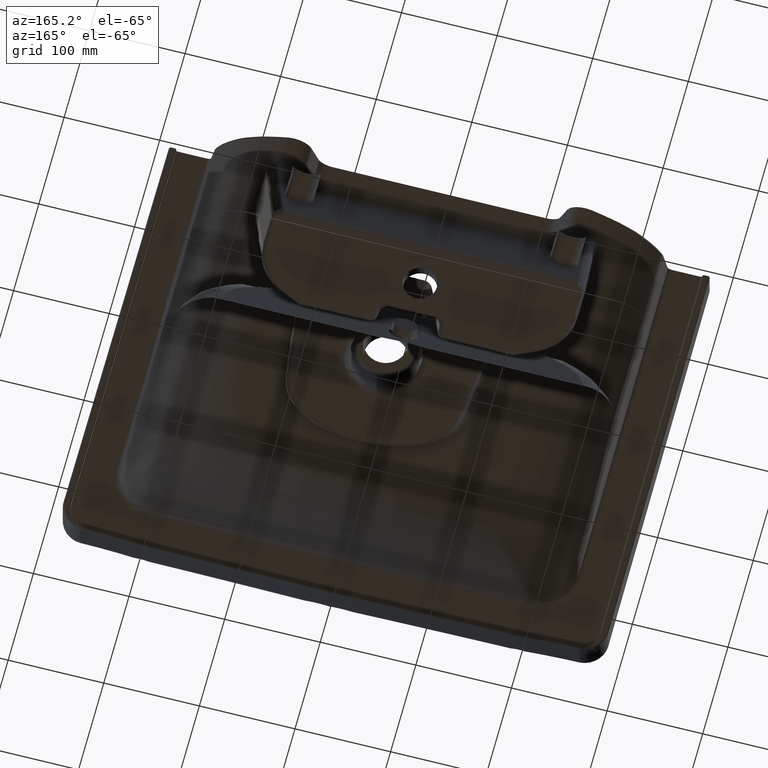
[diagram: clean part render]
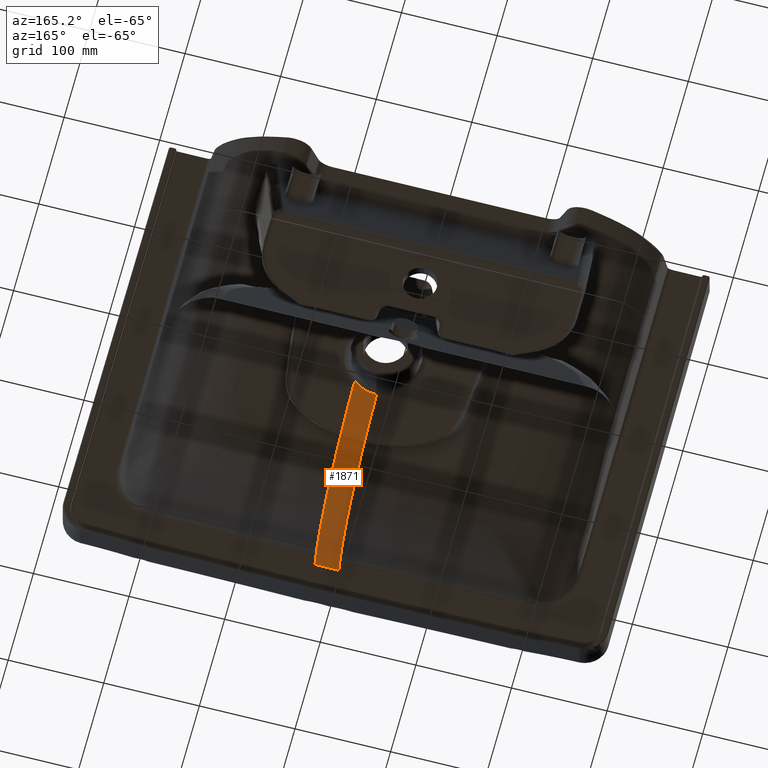
[diagram: same view with one face highlighted and labeled with its STEP entity id]
A machine part, auxiliary view. The second image highlights one B-rep face of the part: STEP entity #1871.
In plain terms, the highlighted face is a freeform B-spline surface patch.
Its self-contained STEP definition (entity closure, byte-faithful):
#845=B_SPLINE_SURFACE_WITH_KNOTS('',3,3,((#27928,#27929,#27930,#27931,#27932,
#27933,#27934,#27935,#27936,#27937,#27938,#27939,#27940,#27941,#27942,#27943,
#27944,#27945),(#27946,#27947,#27948,#27949,#27950,#27951,#27952,#27953,
#27954,#27955,#27956,#27957,#27958,#27959,#27960,#27961,#27962,#27963),
(#27964,#27965,#27966,#27967,#27968,#27969,#27970,#27971,#27972,#27973,
#27974,#27975,#27976,#27977,#27978,#27979,#27980,#27981),(#27982,#27983,
#27984,#27985,#27986,#27987,#27988,#27989,#27990,#27991,#27992,#27993,#27994,
#27995,#27996,#27997,#27998,#27999),(#28000,#28001,#28002,#28003,#28004,
#28005,#28006,#28007,#28008,#28009,#28010,#28011,#28012,#28013,#28014,#28015,
#28016,#28017),(#28018,#28019,#28020,#28021,#28022,#28023,#28024,#28025,
#28026,#28027,#28028,#28029,#28030,#28031,#28032,#28033,#28034,#28035),
(#28036,#28037,#28038,#28039,#28040,#28041,#28042,#28043,#28044,#28045,
#28046,#28047,#28048,#28049,#28050,#28051,#28052,#28053),(#28054,#28055,
#28056,#28057,#28058,#28059,#28060,#28061,#28062,#28063,#28064,#28065,#28066,
#28067,#28068,#28069,#28070,#28071),(#28072,#28073,#28074,#28075,#28076,
#28077,#28078,#28079,#28080,#28081,#28082,#28083,#28084,#28085,#28086,#28087,
#28088,#28089),(#28090,#28091,#28092,#28093,#28094,#28095,#28096,#28097,
#28098,#28099,#28100,#28101,#28102,#28103,#28104,#28105,#28106,#28107),
(#28108,#28109,#28110,#28111,#28112,#28113,#28114,#28115,#28116,#28117,
#28118,#28119,#28120,#28121,#28122,#28123,#28124,#28125),(#28126,#28127,
#28128,#28129,#28130,#28131,#28132,#28133,#28134,#28135,#28136,#28137,#28138,
#28139,#28140,#28141,#28142,#28143),(#28144,#28145,#28146,#28147,#28148,
#28149,#28150,#28151,#28152,#28153,#28154,#28155,#28156,#28157,#28158,#28159,
#28160,#28161),(#28162,#28163,#28164,#28165,#28166,#28167,#28168,#28169,
#28170,#28171,#28172,#28173,#28174,#28175,#28176,#28177,#28178,#28179),
(#28180,#28181,#28182,#28183,#28184,#28185,#28186,#28187,#28188,#28189,
#28190,#28191,#28192,#28193,#28194,#28195,#28196,#28197),(#28198,#28199,
#28200,#28201,#28202,#28203,#28204,#28205,#28206,#28207,#28208,#28209,#28210,
#28211,#28212,#28213,#28214,#28215),(#28216,#28217,#28218,#28219,#28220,
#28221,#28222,#28223,#28224,#28225,#28226,#28227,#28228,#28229,#28230,#28231,
#28232,#28233),(#28234,#28235,#28236,#28237,#28238,#28239,#28240,#28241,
#28242,#28243,#28244,#28245,#28246,#28247,#28248,#28249,#28250,#28251),
(#28252,#28253,#28254,#28255,#28256,#28257,#28258,#28259,#28260,#28261,
#28262,#28263,#28264,#28265,#28266,#28267,#28268,#28269),(#28270,#28271,
#28272,#28273,#28274,#28275,#28276,#28277,#28278,#28279,#28280,#28281,#28282,
#28283,#28284,#28285,#28286,#28287),(#28288,#28289,#28290,#28291,#28292,
#28293,#28294,#28295,#28296,#28297,#28298,#28299,#28300,#28301,#28302,#28303,
#28304,#28305),(#28306,#28307,#28308,#28309,#28310,#28311,#28312,#28313,
#28314,#28315,#28316,#28317,#28318,#28319,#28320,#28321,#28322,#28323),
(#28324,#28325,#28326,#28327,#28328,#28329,#28330,#28331,#28332,#28333,
#28334,#28335,#28336,#28337,#28338,#28339,#28340,#28341),(#28342,#28343,
#28344,#28345,#28346,#28347,#28348,#28349,#28350,#28351,#28352,#28353,#28354,
#28355,#28356,#28357,#28358,#28359),(#28360,#28361,#28362,#28363,#28364,
#28365,#28366,#28367,#28368,#28369,#28370,#28371,#28372,#28373,#28374,#28375,
#28376,#28377),(#28378,#28379,#28380,#28381,#28382,#28383,#28384,#28385,
#28386,#28387,#28388,#28389,#28390,#28391,#28392,#28393,#28394,#28395),
(#28396,#28397,#28398,#28399,#28400,#28401,#28402,#28403,#28404,#28405,
#28406,#28407,#28408,#28409,#28410,#28411,#28412,#28413),(#28414,#28415,
#28416,#28417,#28418,#28419,#28420,#28421,#28422,#28423,#28424,#28425,#28426,
#28427,#28428,#28429,#28430,#28431),(#28432,#28433,#28434,#28435,#28436,
#28437,#28438,#28439,#28440,#28441,#28442,#28443,#28444,#28445,#28446,#28447,
#28448,#28449),(#28450,#28451,#28452,#28453,#28454,#28455,#28456,#28457,
#28458,#28459,#28460,#28461,#28462,#28463,#28464,#28465,#28466,#28467),
(#28468,#28469,#28470,#28471,#28472,#28473,#28474,#28475,#28476,#28477,
#28478,#28479,#28480,#28481,#28482,#28483,#28484,#28485),(#28486,#28487,
#28488,#28489,#28490,#28491,#28492,#28493,#28494,#28495,#28496,#28497,#28498,
#28499,#28500,#28501,#28502,#28503),(#28504,#28505,#28506,#28507,#28508,
#28509,#28510,#28511,#28512,#28513,#28514,#28515,#28516,#28517,#28518,#28519,
#28520,#28521),(#28522,#28523,#28524,#28525,#28526,#28527,#28528,#28529,
#28530,#28531,#28532,#28533,#28534,#28535,#28536,#28537,#28538,#28539),
(#28540,#28541,#28542,#28543,#28544,#28545,#28546,#28547,#28548,#28549,
#28550,#28551,#28552,#28553,#28554,#28555,#28556,#28557),(#28558,#28559,
#28560,#28561,#28562,#28563,#28564,#28565,#28566,#28567,#28568,#28569,#28570,
#28571,#28572,#28573,#28574,#28575),(#28576,#28577,#28578,#28579,#28580,
#28581,#28582,#28583,#28584,#28585,#28586,#28587,#28588,#28589,#28590,#28591,
#28592,#28593),(#28594,#28595,#28596,#28597,#28598,#28599,#28600,#28601,
#28602,#28603,#28604,#28605,#28606,#28607,#28608,#28609,#28610,#28611),
(#28612,#28613,#28614,#28615,#28616,#28617,#28618,#28619,#28620,#28621,
#28622,#28623,#28624,#28625,#28626,#28627,#28628,#28629),(#28630,#28631,
#28632,#28633,#28634,#28635,#28636,#28637,#28638,#28639,#28640,#28641,#28642,
#28643,#28644,#28645,#28646,#28647),(#28648,#28649,#28650,#28651,#28652,
#28653,#28654,#28655,#28656,#28657,#28658,#28659,#28660,#28661,#28662,#28663,
#28664,#28665),(#28666,#28667,#28668,#28669,#28670,#28671,#28672,#28673,
#28674,#28675,#28676,#28677,#28678,#28679,#28680,#28681,#28682,#28683),
(#28684,#28685,#28686,#28687,#28688,#28689,#28690,#28691,#28692,#28693,
#28694,#28695,#28696,#28697,#28698,#28699,#28700,#28701),(#28702,#28703,
#28704,#28705,#28706,#28707,#28708,#28709,#28710,#28711,#28712,#28713,#28714,
#28715,#28716,#28717,#28718,#28719),(#28720,#28721,#28722,#28723,#28724,
#28725,#28726,#28727,#28728,#28729,#28730,#28731,#28732,#28733,#28734,#28735,
#28736,#28737),(#28738,#28739,#28740,#28741,#28742,#28743,#28744,#28745,
#28746,#28747,#28748,#28749,#28750,#28751,#28752,#28753,#28754,#28755),
(#28756,#28757,#28758,#28759,#28760,#28761,#28762,#28763,#28764,#28765,
#28766,#28767,#28768,#28769,#28770,#28771,#28772,#28773),(#28774,#28775,
#28776,#28777,#28778,#28779,#28780,#28781,#28782,#28783,#28784,#28785,#28786,
#28787,#28788,#28789,#28790,#28791),(#28792,#28793,#28794,#28795,#28796,
#28797,#28798,#28799,#28800,#28801,#28802,#28803,#28804,#28805,#28806,#28807,
#28808,#28809),(#28810,#28811,#28812,#28813,#28814,#28815,#28816,#28817,
#28818,#28819,#28820,#28821,#28822,#28823,#28824,#28825,#28826,#28827),
(#28828,#28829,#28830,#28831,#28832,#28833,#28834,#28835,#28836,#28837,
#28838,#28839,#28840,#28841,#28842,#28843,#28844,#28845),(#28846,#28847,
#28848,#28849,#28850,#28851,#28852,#28853,#28854,#28855,#28856,#28857,#28858,
#28859,#28860,#28861,#28862,#28863),(#28864,#28865,#28866,#28867,#28868,
#28869,#28870,#28871,#28872,#28873,#28874,#28875,#28876,#28877,#28878,#28879,
#28880,#28881)),.UNSPECIFIED.,.F.,.F.,.F.,(4,1,1,1,1,1,1,1,1,1,1,1,1,1,
1,1,1,1,1,1,1,1,1,1,1,1,1,1,1,1,1,1,1,1,1,1,1,1,1,1,1,1,1,1,1,1,1,1,1,1,
4),(4,1,1,1,1,1,1,1,1,1,1,1,1,1,1,4),(0.,0.0300278368969384,0.0450417553454076,
0.0600556737938768,0.075069592242346,0.0788230718544633,0.0806998116605219,
0.0825765514665806,0.0900835106908152,0.0975904699150498,0.105097429139284,
0.112604388363519,0.116357867975636,0.120111347587754,0.123864827199871,
0.12574156700593,0.127618306811988,0.135125266036223,0.142632225260457,
0.150139184484692,0.157646143708927,0.165153102933161,0.18016702138163,
0.1951809398301,0.210194858278569,0.240222695175507,0.270250532072446,0.285264450520915,
0.300278368969384,0.315292287417853,0.330306205866322,0.345320124314792,
0.352827083539026,0.354703823345085,0.356580563151143,0.360334042763261,
0.364087522375378,0.367841001987495,0.37534796121173,0.382854920435965,
0.390361879660199,0.397868838884434,0.399745578690492,0.401622318496551,
0.405375798108668,0.420389716557138,0.435403635005607,0.450417553454076,
0.480445390351014,0.496280085240527,1.),(0.,0.0567837466522675,0.174685778320734,
0.233636794154967,0.263112302072084,0.292587809989201,0.322063317906317,
0.351538825823434,0.410489841657667,0.4694408574919,0.528391873326134,0.587342889160367,
0.6462939049946,0.764195936663067,0.882097968331533,1.),.UNSPECIFIED.);
#1871=ADVANCED_FACE('',(#2501),#845,.F.);
#2501=FACE_OUTER_BOUND('',#3048,.T.);
#3048=EDGE_LOOP('',(#5317,#5318,#5319,#5320));
#5317=ORIENTED_EDGE('',*,*,#6762,.F.);
#5318=ORIENTED_EDGE('',*,*,#7723,.T.);
#5319=ORIENTED_EDGE('',*,*,#6765,.T.);
#5320=ORIENTED_EDGE('',*,*,#7705,.F.);
#5930=VERTEX_POINT('',#13965);
#5935=VERTEX_POINT('',#14003);
#5950=VERTEX_POINT('',#14325);
#5952=VERTEX_POINT('',#14420);
#6762=EDGE_CURVE('',#5950,#5935,#8037,.T.);
#6765=EDGE_CURVE('',#5952,#5930,#8040,.T.);
#7705=EDGE_CURVE('',#5935,#5930,#8519,.T.);
#7723=EDGE_CURVE('',#5950,#5952,#8534,.T.);
#8037=B_SPLINE_CURVE_WITH_KNOTS('',3,(#14326,#14327,#14328,#14329),
 .UNSPECIFIED.,.F.,.F.,(4,4),(0.,1.),.UNSPECIFIED.);
#8040=B_SPLINE_CURVE_WITH_KNOTS('',3,(#14416,#14417,#14418,#14419),
 .UNSPECIFIED.,.F.,.F.,(4,4),(0.,1.),.UNSPECIFIED.);
#8519=B_SPLINE_CURVE_WITH_KNOTS('',3,(#25296,#25297,#25298,#25299,#25300,
#25301,#25302,#25303,#25304,#25305,#25306,#25307,#25308,#25309),
 .UNSPECIFIED.,.F.,.F.,(4,2,2,2,2,2,4),(0.,0.25,0.5,0.625,0.75,0.875,1.),
 .UNSPECIFIED.);
#8534=B_SPLINE_CURVE_WITH_KNOTS('',3,(#27910,#27911,#27912,#27913,#27914,
#27915,#27916,#27917,#27918,#27919,#27920,#27921,#27922,#27923,#27924,#27925,
#27926,#27927),.UNSPECIFIED.,.F.,.F.,(4,2,2,2,2,2,2,2,4),(0.,0.125,0.25,
0.5,0.625,0.75,0.8125,0.875,1.),.UNSPECIFIED.);
#13965=CARTESIAN_POINT('',(-1.39140248213179E-014,-156.430082356092,-11.0177538948197));
#14003=CARTESIAN_POINT('',(4.93018537886795E-016,-7.48991412262812,-122.102044375897));
#14325=CARTESIAN_POINT('',(-25.0000000010118,1.82096256915721,-122.172140991362));
#14326=CARTESIAN_POINT('',(-25.0000000010118,1.82096256915727,-122.172140991362));
#14327=CARTESIAN_POINT('',(-18.1135513564485,-4.20053377175669,-122.134005483776));
#14328=CARTESIAN_POINT('',(-9.14724937589653,-7.47991694305172,-122.099470361372));
#14329=CARTESIAN_POINT('',(-2.41641910947334E-012,-7.48991412262813,-122.102044375897));
#14416=CARTESIAN_POINT('',(-25.0000000010117,-156.375375919923,-10.9640356335702));
#14417=CARTESIAN_POINT('',(-16.6671010056402,-156.418240559724,-11.0097181161051));
#14418=CARTESIAN_POINT('',(-8.33371730847463,-156.434091098401,-11.0239860501591));
#14419=CARTESIAN_POINT('',(-2.15921568473194E-014,-156.430082356092,-11.0177538948197));
#14420=CARTESIAN_POINT('',(-25.0000000010118,-156.375375919923,-10.9640356335702));
#25296=CARTESIAN_POINT('',(1.92007810763769E-015,-7.48991412262811,-122.102044375897));
#25297=CARTESIAN_POINT('',(1.92007810763769E-015,-23.413533915072,-118.435549151402));
#25298=CARTESIAN_POINT('',(-1.18841013790075E-014,-39.0899284544118,-113.942209165104));
#25299=CARTESIAN_POINT('',(-1.18841013790075E-014,-69.6868941997948,-102.427678351472));
#25300=CARTESIAN_POINT('',(5.64335509822661E-015,-84.366951200011,-95.5006900944936));
#25301=CARTESIAN_POINT('',(5.64335509822661E-015,-104.778313677716,-82.4953148116222));
#25302=CARTESIAN_POINT('',(-9.28869833682566E-015,-111.319347955552,-77.7179546112544));
#25303=CARTESIAN_POINT('',(-9.28869833682566E-015,-123.704598956053,-66.9904333915461));
#25304=CARTESIAN_POINT('',(2.07482469916936E-014,-129.484644440256,-61.0725256869618));
#25305=CARTESIAN_POINT('',(2.07482469916936E-014,-139.665774242631,-48.3441015512308));
#25306=CARTESIAN_POINT('',(-5.97030971246919E-015,-144.145087993446,-41.4270858740918));
#25307=CARTESIAN_POINT('',(-5.97030971246919E-015,-151.538421910827,-26.7026245735287));
#25308=CARTESIAN_POINT('',(-3.30797765678857E-014,-154.384984126819,-19.0140329587193));
#25309=CARTESIAN_POINT('',(-3.30797765678857E-014,-156.430082356092,-11.0177538948196));
#27910=CARTESIAN_POINT('',(-25.0000000010118,1.82096256915721,-122.172140991362));
#27911=CARTESIAN_POINT('',(-25.0000000010118,-6.72147591278858,-121.194032579836));
#27912=CARTESIAN_POINT('',(-25.0000000010118,-15.0702905771648,-119.518295898965));
#27913=CARTESIAN_POINT('',(-25.0000000010118,-31.5600287585067,-115.41778895654));
#27914=CARTESIAN_POINT('',(-25.0000000010118,-39.7044192818916,-113.005510348742));
#27915=CARTESIAN_POINT('',(-25.0000000010118,-63.8660176544828,-104.790193973756));
#27916=CARTESIAN_POINT('',(-25.0000000010118,-79.6792760143665,-97.8430320656694));
#27917=CARTESIAN_POINT('',(-25.0000000010118,-101.492225651001,-84.6586434340161));
#27918=CARTESIAN_POINT('',(-25.0000000010118,-108.474827838543,-79.789859803361));
#27919=CARTESIAN_POINT('',(-25.0000000010118,-121.685156463675,-68.8115673257173));
#27920=CARTESIAN_POINT('',(-25.0000000010118,-127.78716934763,-62.7910190341915));
#27921=CARTESIAN_POINT('',(-25.0000000010118,-135.918050731897,-52.9593555172306));
#27922=CARTESIAN_POINT('',(-25.0000000010118,-138.462406349282,-49.5405793893981));
#27923=CARTESIAN_POINT('',(-25.0000000010118,-143.192993287872,-42.3975261958736));
#27924=CARTESIAN_POINT('',(-25.0000000010118,-145.385533412077,-38.659737398855));
#27925=CARTESIAN_POINT('',(-25.0000000010117,-151.246520788431,-27.2402357785794));
#27926=CARTESIAN_POINT('',(-25.0000000010118,-154.243382266423,-19.2712257793089));
#27927=CARTESIAN_POINT('',(-25.0000000010118,-156.375375919923,-10.9640356335703));
#27928=CARTESIAN_POINT('',(250.134561564579,29.7916045822201,12.7540339902748));
#27929=CARTESIAN_POINT('',(248.437812751475,29.7916048874254,7.8317751631829));
#27930=CARTESIAN_POINT('',(243.218046453789,29.7916058263386,-7.31073770360978));
#27931=CARTESIAN_POINT('',(235.67584914724,29.7916065785697,-27.4020884843123));
#27932=CARTESIAN_POINT('',(227.748611837808,29.7916068936915,-44.6409295150423));
#27933=CARTESIAN_POINT('',(222.563478098361,29.7916069884239,-54.1837924622139));
#27934=CARTESIAN_POINT('',(218.2211678234,29.7916070204123,-61.0719157069435));
#27935=CARTESIAN_POINT('',(213.295347961799,29.7916070169472,-67.5754617897639));
#27936=CARTESIAN_POINT('',(205.915643555279,29.791606969866,-75.5717931235667));
#27937=CARTESIAN_POINT('',(195.638865690315,29.7916068404188,-84.5549821470934));
#27938=CARTESIAN_POINT('',(181.742000539744,29.7916066009897,-93.2719173535865));
#27939=CARTESIAN_POINT('',(166.817158037541,29.7916063063288,-100.149704651228));
#27940=CARTESIAN_POINT('',(151.189241094264,29.7916059852967,-105.3358279365));
#27941=CARTESIAN_POINT('',(129.852219749948,29.7916055605731,-110.758703615468));
#27942=CARTESIAN_POINT('',(102.568599319361,29.7916051080435,-115.4576328284));
#27943=CARTESIAN_POINT('',(69.4139566867702,29.7916049212928,-119.641358320238));
#27944=CARTESIAN_POINT('',(47.1485197008722,29.7916051882389,-121.598965195901));
#27945=CARTESIAN_POINT('',(36.,29.7916054580544,-122.395185092957));
#27946=CARTESIAN_POINT('',(250.422581401046,12.248584221255,12.7807264583826));
#27947=CARTESIAN_POINT('',(248.629774111771,12.4200081101115,7.84647574600015));
#27948=CARTESIAN_POINT('',(243.114499844577,12.9473652715019,-7.33292816689322));
#27949=CARTESIAN_POINT('',(235.179039235625,13.7965954543874,-27.3561168774454));
#27950=CARTESIAN_POINT('',(226.943757641856,14.682614761097,-44.4187356092524));
#27951=CARTESIAN_POINT('',(221.606831557976,15.222959026578,-53.8382039013468));
#27952=CARTESIAN_POINT('',(217.168252229714,15.6441652895642,-60.6310305293083));
#27953=CARTESIAN_POINT('',(212.169337571923,16.0800901527896,-67.0456601881498));
#27954=CARTESIAN_POINT('',(204.724766157934,16.6786954131704,-74.9459325328075));
#27955=CARTESIAN_POINT('',(194.408902774526,17.4554276783418,-83.8308334171195));
#27956=CARTESIAN_POINT('',(180.528994103231,18.4201756634082,-92.504737472614));
#27957=CARTESIAN_POINT('',(165.664059313087,19.407181614371,-99.4040468923028));
#27958=CARTESIAN_POINT('',(150.127145108164,20.4065613360374,-104.671811810347));
#27959=CARTESIAN_POINT('',(128.936679726666,21.7477122393992,-110.232675338684));
#27960=CARTESIAN_POINT('',(101.87401564794,23.4244872066773,-115.120940071704));
#27961=CARTESIAN_POINT('',(69.033938244307,25.4263255769966,-119.476001128612));
#27962=CARTESIAN_POINT('',(47.0149256014651,26.7621072432728,-121.540383145744));
#27963=CARTESIAN_POINT('',(35.9998393033569,27.4334987012833,-122.395185092957));
#27964=CARTESIAN_POINT('',(250.836189900647,-14.0621950343162,12.7965852871926));
#27965=CARTESIAN_POINT('',(248.904180352184,-13.6350174347481,7.85291216921212));
#27966=CARTESIAN_POINT('',(242.960673422936,-12.3208764021264,-7.35547821168634));
#27967=CARTESIAN_POINT('',(234.447764648288,-10.1984894832274,-27.260375251345));
#27968=CARTESIAN_POINT('',(225.754247275107,-7.98355022841666,-44.0616799725621));
#27969=CARTESIAN_POINT('',(220.189732589655,-6.63262519987391,-53.3015615344814));
#27970=CARTESIAN_POINT('',(215.605766199832,-5.57951413557885,-59.9566304917346));
#27971=CARTESIAN_POINT('',(210.495160311867,-4.48956121722109,-66.2432265144858));
#27972=CARTESIAN_POINT('',(202.949118084236,-2.9927447807524,-74.0053861976782));
#27973=CARTESIAN_POINT('',(192.566689996982,-1.05022676099767,-82.7499952739134));
#27974=CARTESIAN_POINT('',(178.69824159224,1.36323350382849,-91.3633549750682));
#27975=CARTESIAN_POINT('',(163.904676679953,3.83314388122388,-98.2950563358858));
#27976=CARTESIAN_POINT('',(148.481149943846,6.33478419090038,-103.681641800443));
#27977=CARTESIAN_POINT('',(127.473432671822,9.69246463922991,-109.444013770906));
#27978=CARTESIAN_POINT('',(100.683870958186,13.8905817014216,-114.61112501668));
#27979=CARTESIAN_POINT('',(68.2257972793463,18.8963988530269,-119.225111504849));
#27980=CARTESIAN_POINT('',(46.5028121606864,22.2267859572294,-121.452079460512));
#27981=CARTESIAN_POINT('',(35.6475323545344,23.896712795716,-122.395185092957));
#27982=CARTESIAN_POINT('',(251.564558986733,-49.1602243767788,12.768285408285));
#27983=CARTESIAN_POINT('',(249.392574807851,-48.3859980858037,7.82954992488873));
#27984=CARTESIAN_POINT('',(242.710825730746,-46.0042193161927,-7.36365064217619));
#27985=CARTESIAN_POINT('',(233.260625665561,-42.1630117280367,-27.0775193043059));
#27986=CARTESIAN_POINT('',(223.848990395692,-38.1652722409036,-43.5356398118242));
#27987=CARTESIAN_POINT('',(217.930037110844,-35.7291585883195,-52.5466960633072));
#27988=CARTESIAN_POINT('',(213.118745641327,-33.8310220566603,-59.0282083122036));
#27989=CARTESIAN_POINT('',(207.830168387839,-31.8672579730401,-65.1545557035233));
#27990=CARTESIAN_POINT('',(200.115532366554,-29.1711452436588,-72.7442708004485));
#27991=CARTESIAN_POINT('',(189.612050284224,-25.6729518891606,-81.315882422237));
#27992=CARTESIAN_POINT('',(175.732256123587,-21.3261368996203,-89.8563852455201));
#27993=CARTESIAN_POINT('',(161.016631324111,-16.876085197258,-96.8314839444533));
#27994=CARTESIAN_POINT('',(145.733663345328,-12.3663851941411,-102.369325135562));
#27995=CARTESIAN_POINT('',(124.960582621816,-6.31023874152505,-108.389733553795));
#27996=CARTESIAN_POINT('',(98.5265569976435,1.26817921059657,-113.918987953293));
#27997=CARTESIAN_POINT('',(66.5496580291094,10.3061224546695,-118.88325537248));
#27998=CARTESIAN_POINT('',(45.1758958788075,16.31040559191,-121.332900092878));
#27999=CARTESIAN_POINT('',(34.5005922161541,19.316206692239,-122.395185092957));
#28000=CARTESIAN_POINT('',(252.18509311755,-75.4909028386069,12.7217287425524));
#28001=CARTESIAN_POINT('',(249.804014853499,-74.4540033288877,7.79565556542757));
#28002=CARTESIAN_POINT('',(242.479022504095,-71.2641539692653,-7.35859151658649));
#28003=CARTESIAN_POINT('',(232.220504169273,-66.1211443846928,-26.9118888425711));
#28004=CARTESIAN_POINT('',(222.190809824506,-60.7761972935201,-43.1148343194218));
#28005=CARTESIAN_POINT('',(215.964588181678,-57.5207012470884,-51.9593971628116));
#28006=CARTESIAN_POINT('',(210.953730504115,-54.9848248935735,-58.3156838288923));
#28007=CARTESIAN_POINT('',(205.504637216338,-52.3618698707961,-64.3269788101857));
#28008=CARTESIAN_POINT('',(197.630247993502,-48.7612891135844,-71.7931100906011));
#28009=CARTESIAN_POINT('',(186.999542484599,-44.09018953867,-80.2419217844926));
#28010=CARTESIAN_POINT('',(173.076028382522,-38.2857698604604,-88.7316897927789));
#28011=CARTESIAN_POINT('',(158.392369369575,-32.342686040335,-95.7394782202091));
#28012=CARTESIAN_POINT('',(143.197223708081,-26.3185985833613,-101.387271105026));
#28013=CARTESIAN_POINT('',(122.588789648439,-18.2273174301071,-107.596082827186));
#28014=CARTESIAN_POINT('',(96.4304661851386,-8.09989515592225,-113.392478231033));
#28015=CARTESIAN_POINT('',(64.8639957267857,3.9723872831738,-118.622543682003));
#28016=CARTESIAN_POINT('',(43.8119791035886,11.9794508317821,-121.242574351539));
#28017=CARTESIAN_POINT('',(33.3085318808559,15.9820393722218,-122.395185092957));
#28018=CARTESIAN_POINT('',(252.969732954254,-95.2806631266988,12.6657998159156));
#28019=CARTESIAN_POINT('',(250.312994869593,-94.0324113093594,7.75664148879953));
#28020=CARTESIAN_POINT('',(242.139980803519,-90.19237163062,-7.34556986269001));
#28021=CARTESIAN_POINT('',(230.944867575495,-84.0300166075782,-26.7636493534722));
#28022=CARTESIAN_POINT('',(220.274546826592,-77.6503919996698,-42.7760211541092));
#28023=CARTESIAN_POINT('',(213.745568223831,-73.769897745325,-51.4992570322059));
#28024=CARTESIAN_POINT('',(208.544277232962,-70.7494574259791,-57.7651910171152));
#28025=CARTESIAN_POINT('',(202.94654252179,-67.6273091098347,-63.6939860527816));
#28026=CARTESIAN_POINT('',(194.930043744417,-63.3437088308692,-71.0717556764572));
#28027=CARTESIAN_POINT('',(184.20246325377,-57.7899489193522,-79.4338574926393));
#28028=CARTESIAN_POINT('',(170.278909955727,-50.8920783666882,-87.8889216031551));
#28029=CARTESIAN_POINT('',(155.67873782879,-43.8312384804489,-94.9218948058651));
#28030=CARTESIAN_POINT('',(140.627964458806,-36.674616830141,-100.650183183182));
#28031=CARTESIAN_POINT('',(120.262690028698,-27.0619827664871,-106.99736191884));
#28032=CARTESIAN_POINT('',(94.469469642616,-15.028339289436,-112.991834329798));
#28033=CARTESIAN_POINT('',(63.3527671177525,-0.682378284046785,-118.424293623288));
#28034=CARTESIAN_POINT('',(42.5632959774387,8.82963082609196,-121.174461187276));
#28035=CARTESIAN_POINT('',(32.170676751661,13.5825191611595,-122.395185092957));
#28036=CARTESIAN_POINT('',(253.854269916244,-107.442676195224,12.6244524669702));
#28037=CARTESIAN_POINT('',(250.908367895099,-106.041481314619,7.72815281940714));
#28038=CARTESIAN_POINT('',(241.845788939686,-101.730937669156,-7.3345009372016));
#28039=CARTESIAN_POINT('',(229.727127017133,-94.8696543453746,-26.6645952923245));
#28040=CARTESIAN_POINT('',(218.463627357933,-87.8089624213416,-42.5604658081808));
#28041=CARTESIAN_POINT('',(211.662283999576,-83.5235727543575,-51.2105761491974));
#28042=CARTESIAN_POINT('',(206.292286088349,-80.1921738644377,-57.422347737864));
#28043=CARTESIAN_POINT('',(200.563792812715,-76.7524218536584,-63.3018158834397));
#28044=CARTESIAN_POINT('',(192.422735872848,-72.0376323013556,-70.6267105172071));
#28045=CARTESIAN_POINT('',(181.615977081814,-65.9324980640693,-78.937147998678));
#28046=CARTESIAN_POINT('',(167.705720325744,-58.359721125241,-87.3713627712739));
#28047=CARTESIAN_POINT('',(153.201017879195,-50.616121719405,-94.4190996065508));
#28048=CARTESIAN_POINT('',(138.307876172453,-42.7740451691736,-100.195061035096));
#28049=CARTESIAN_POINT('',(118.208790232171,-32.2482660279929,-106.624910288849));
#28050=CARTESIAN_POINT('',(92.8172228304423,-19.0834458629215,-112.739276306402));
#28051=CARTESIAN_POINT('',(62.1907419445038,-3.40585298211424,-118.297941351372));
#28052=CARTESIAN_POINT('',(41.6731309879991,6.97762664179877,-121.130982280016));
#28053=CARTESIAN_POINT('',(31.3876836567676,12.16295347557,-122.395185092957));
#28054=CARTESIAN_POINT('',(254.132514496677,-111.878431042956,12.6085441476199));
#28055=CARTESIAN_POINT('',(251.074452825587,-110.417550740754,7.71722749834427));
#28056=CARTESIAN_POINT('',(241.666833310118,-105.923394795278,-7.33009689052228));
#28057=CARTESIAN_POINT('',(229.192591440916,-98.7950475391586,-26.6275459662209));
#28058=CARTESIAN_POINT('',(217.702921627093,-91.4784473244908,-42.4810321543994));
#28059=CARTESIAN_POINT('',(210.798378929029,-87.0419537002828,-51.1046636279518));
#28060=CARTESIAN_POINT('',(205.364785447903,-83.5949849344462,-57.2968600795481));
#28061=CARTESIAN_POINT('',(199.587325172624,-80.0376402339712,-63.1585194813937));
#28062=CARTESIAN_POINT('',(191.40013316751,-75.1637579033482,-70.4643266800263));
#28063=CARTESIAN_POINT('',(180.565395748997,-68.8561590861183,-78.7561506534698));
#28064=CARTESIAN_POINT('',(166.663601573162,-61.0369299832754,-87.1828653682875));
#28065=CARTESIAN_POINT('',(152.199562323463,-53.0452326184489,-94.235948170408));
#28066=CARTESIAN_POINT('',(137.371674537835,-44.9551731648114,-100.029124493721));
#28067=CARTESIAN_POINT('',(117.382167966642,-34.1003620981955,-106.488882938744));
#28068=CARTESIAN_POINT('',(92.1559399526687,-20.5302006429716,-112.646763680993));
#28069=CARTESIAN_POINT('',(61.733489521921,-4.37840661860157,-118.251576661041));
#28070=CARTESIAN_POINT('',(41.3318934894276,6.31383000657806,-121.115034595599));
#28071=CARTESIAN_POINT('',(31.0935474671966,11.6520775739275,-122.395185092957));
#28072=CARTESIAN_POINT('',(253.935741156822,-118.515314519026,12.5837584815694));
#28073=CARTESIAN_POINT('',(250.752405302494,-116.963055123403,7.70024117258163));
#28074=CARTESIAN_POINT('',(240.959400540497,-112.187786553323,-7.32308983950207));
#28075=CARTESIAN_POINT('',(228.081369998518,-104.652408100344,-26.5708842568333));
#28076=CARTESIAN_POINT('',(216.332939916149,-96.9475366376664,-42.3607662862541));
#28077=CARTESIAN_POINT('',(209.311078065109,-92.2822458870947,-50.9447931868679));
#28078=CARTESIAN_POINT('',(203.806237387777,-88.660509372189,-57.1077508968426));
#28079=CARTESIAN_POINT('',(197.975804148274,-84.9255591015644,-62.9428314337568));
#28080=CARTESIAN_POINT('',(189.742214658268,-79.8116802141964,-70.2201578417916));
#28081=CARTESIAN_POINT('',(178.886318933857,-73.1991896312151,-78.484252351587));
#28082=CARTESIAN_POINT('',(165.012235140321,-65.0096699341264,-86.8998233625194));
#28083=CARTESIAN_POINT('',(150.616612736648,-56.6460606581518,-93.9609290313885));
#28084=CARTESIAN_POINT('',(135.888792723556,-48.1851366453421,-99.7798327078641));
#28085=CARTESIAN_POINT('',(116.06273803745,-36.8394759017668,-106.284332187076));
#28086=CARTESIAN_POINT('',(91.0820851904664,-22.6670543071693,-112.507425452883));
#28087=CARTESIAN_POINT('',(60.9795797275785,-5.81508625086016,-118.181701010501));
#28088=CARTESIAN_POINT('',(40.78507140492,5.32972618190075,-121.091014889992));
#28089=CARTESIAN_POINT('',(30.6430065492749,10.8912051984257,-122.395185092957));
#28090=CARTESIAN_POINT('',(251.812016554056,-128.284283419914,12.5429454051557));
#28091=CARTESIAN_POINT('',(248.556638679545,-126.597230343341,7.67240470903193));
#28092=CARTESIAN_POINT('',(238.542008591479,-121.407291370941,-7.31100590590003));
#28093=CARTESIAN_POINT('',(225.409345209836,-113.264318744853,-26.4816176965102));
#28094=CARTESIAN_POINT('',(213.49295447749,-104.976730318423,-42.1759583950756));
#28095=CARTESIAN_POINT('',(206.398483201936,-99.9675701134239,-50.7010057998749));
#28096=CARTESIAN_POINT('',(200.853879601708,-96.0830140554517,-56.8205793484556));
#28097=CARTESIAN_POINT('',(195.001481214202,-92.080908913991,-62.6163115665568));
#28098=CARTESIAN_POINT('',(186.76320957195,-86.6060403029484,-69.8515113391998));
#28099=CARTESIAN_POINT('',(175.936709910738,-79.5351680898302,-78.0747792863462));
#28100=CARTESIAN_POINT('',(162.151977460385,-70.7899175518618,-86.4741105073743));
#28101=CARTESIAN_POINT('',(147.887634810267,-61.869768961535,-93.5473484844873));
#28102=CARTESIAN_POINT('',(133.325877997045,-52.8561716287554,-99.4045690210731));
#28103=CARTESIAN_POINT('',(113.757949180955,-40.7830814735065,-105.975817040582));
#28104=CARTESIAN_POINT('',(89.162318259766,-25.7276275827041,-112.296585297393));
#28105=CARTESIAN_POINT('',(59.6120072083709,-7.87083189236095,-118.075923237078));
#28106=CARTESIAN_POINT('',(39.8455209814726,3.90430358920665,-121.054734704087));
#28107=CARTESIAN_POINT('',(29.9324629046703,9.77072134352858,-122.395185092957));
#28108=CARTESIAN_POINT('',(245.391538351541,-139.937580799588,12.478941274216));
#28109=CARTESIAN_POINT('',(242.21822863615,-138.131192643767,7.62909500782496));
#28110=CARTESIAN_POINT('',(232.456067627642,-132.574139093192,-7.29065262644975));
#28111=CARTESIAN_POINT('',(219.54967041672,-123.798896954924,-26.3515698247942));
#28112=CARTESIAN_POINT('',(207.788818553005,-114.844480637926,-41.9184274180933));
#28113=CARTESIAN_POINT('',(200.784232181386,-109.428523049872,-50.3661082330669));
#28114=CARTESIAN_POINT('',(195.312602618001,-105.22724190947,-56.4292275708566));
#28115=CARTESIAN_POINT('',(189.54392260709,-100.898104309215,-62.1740786155594));
#28116=CARTESIAN_POINT('',(181.434159457932,-94.9754891553982,-69.3551138317625));
#28117=CARTESIAN_POINT('',(170.788051730598,-87.3267570208731,-77.5266594356014));
#28118=CARTESIAN_POINT('',(157.256661264518,-77.8709458845137,-85.9067660281822));
#28119=CARTESIAN_POINT('',(143.274699501372,-68.2339284167673,-92.9977998778452));
#28120=CARTESIAN_POINT('',(129.023189670706,-58.5077334374045,-98.906805974603));
#28121=CARTESIAN_POINT('',(109.904335470565,-45.5018803034777,-105.56764595839));
#28122=CARTESIAN_POINT('',(85.9487215934456,-29.3354456680392,-112.019098574808));
#28123=CARTESIAN_POINT('',(57.3463631936679,-10.286876365964,-117.938749781963));
#28124=CARTESIAN_POINT('',(38.3760840639765,2.15986923053804,-121.008305357586));
#28125=CARTESIAN_POINT('',(28.9133659434706,8.32474298997382,-122.395185092957));
#28126=CARTESIAN_POINT('',(236.229479102819,-149.617438457678,12.4126879152963));
#28127=CARTESIAN_POINT('',(233.169155406405,-147.706926731927,7.58484125132));
#28128=CARTESIAN_POINT('',(223.754577145211,-141.829554288585,-7.26722825501978));
#28129=CARTESIAN_POINT('',(211.258032933337,-132.521902042829,-26.2177402404682));
#28130=CARTESIAN_POINT('',(199.850514051847,-123.015275203702,-41.6605033957608));
#28131=CARTESIAN_POINT('',(193.056923111724,-117.264444651266,-50.0335959348709));
#28132=CARTESIAN_POINT('',(187.752616140845,-112.803318533351,-56.0425522320073));
#28133=CARTESIAN_POINT('',(182.164993414397,-108.206684167324,-61.7387889376738));
#28134=CARTESIAN_POINT('',(174.316808694627,-101.918854865117,-68.868304465317));
#28135=CARTESIAN_POINT('',(164.022273667997,-93.8006103171402,-76.9911663959896));
#28136=CARTESIAN_POINT('',(150.953180005193,-83.7702255654304,-85.3542121002331));
#28137=CARTESIAN_POINT('',(137.461887033079,-73.556033063888,-92.4638459979851));
#28138=CARTESIAN_POINT('',(123.724030056897,-63.2583903832777,-98.4240729800621));
#28139=CARTESIAN_POINT('',(105.313340410108,-49.5070394636713,-105.172962717043));
#28140=CARTESIAN_POINT('',(82.2883568463215,-32.4565331961959,-111.752290069704));
#28141=CARTESIAN_POINT('',(54.8958114279051,-12.4605988054788,-117.808465419838));
#28142=CARTESIAN_POINT('',(36.8159382349128,0.523985223791025,-120.96465426642));
#28143=CARTESIAN_POINT('',(27.8249538370343,6.93033822996252,-122.395185092957));
#28144=CARTESIAN_POINT('',(226.817291479831,-155.572054139282,12.3558195814134));
#28145=CARTESIAN_POINT('',(223.864925064711,-153.572454159277,7.54455810345295));
#28146=CARTESIAN_POINT('',(214.782459473429,-147.421016478065,-7.25648982895809));
#28147=CARTESIAN_POINT('',(202.740536156549,-137.756215815648,-26.1210790129048));
#28148=CARTESIAN_POINT('',(191.762700718033,-127.929281393935,-41.4656936414859));
#28149=CARTESIAN_POINT('',(185.230192705189,-121.994124486124,-49.7794959998584));
#28150=CARTESIAN_POINT('',(180.132713876847,-117.394089259749,-55.745254088805));
#28151=CARTESIAN_POINT('',(174.766284572634,-112.657916384385,-61.4025470502922));
#28152=CARTESIAN_POINT('',(167.233012423903,-106.183452783574,-68.4904883181177));
#28153=CARTESIAN_POINT('',(157.357247618039,-97.8312594584413,-76.5735635869142));
#28154=CARTESIAN_POINT('',(144.827489860789,-87.5204108311805,-84.9212763669064));
#28155=CARTESIAN_POINT('',(131.898048003511,-77.0265053750559,-92.0436307010817));
#28156=CARTESIAN_POINT('',(118.735793709217,-66.4501967616588,-98.0423788530398));
#28157=CARTESIAN_POINT('',(101.099095040066,-52.327261967405,-104.858496340734));
#28158=CARTESIAN_POINT('',(79.0446072367257,-34.8099403111908,-111.536803448709));
#28159=CARTESIAN_POINT('',(52.804296015492,-14.2291338600103,-117.700947983543));
#28160=CARTESIAN_POINT('',(35.4797530368882,-0.818970846011855,-120.928112831754));
#28161=CARTESIAN_POINT('',(26.8621731167298,5.81428945627486,-122.395185092957));
#28162=CARTESIAN_POINT('',(218.525574916983,-158.685810568561,12.3429054509332));
#28163=CARTESIAN_POINT('',(215.685753694625,-156.670501319171,7.53927836253639));
#28164=CARTESIAN_POINT('',(206.949514721927,-150.470736676261,-7.23828363663569));
#28165=CARTESIAN_POINT('',(195.368105577573,-140.732131897519,-26.0502677806405));
#28166=CARTESIAN_POINT('',(184.81030188772,-130.820690091291,-41.3260426609871));
#28167=CARTESIAN_POINT('',(178.527694074387,-124.831668791978,-49.5967438548672));
#28168=CARTESIAN_POINT('',(173.625192875431,-120.188401028094,-55.5305494186803));
#28169=CARTESIAN_POINT('',(168.463992498418,-115.4061546002,-61.1585998789654));
#28170=CARTESIAN_POINT('',(161.218719560372,-108.866623087669,-68.2148204784356));
#28171=CARTESIAN_POINT('',(151.720048820808,-100.426527323441,-76.266475344269));
#28172=CARTESIAN_POINT('',(139.667589890489,-90.0004333669362,-84.5999781526916));
#28173=CARTESIAN_POINT('',(127.228949302374,-79.3816166533183,-91.7287086623545));
#28174=CARTESIAN_POINT('',(114.564136293929,-68.6706893747974,-97.7531286449603));
#28175=CARTESIAN_POINT('',(97.5902980826717,-54.3538708132004,-104.615581199076));
#28176=CARTESIAN_POINT('',(76.3566465880793,-36.5647922292915,-111.364252261771));
#28177=CARTESIAN_POINT('',(51.0764284340475,-15.5926413902616,-117.609597555646));
#28178=CARTESIAN_POINT('',(34.3724755699505,-1.86195780335857,-120.895799796178));
#28179=CARTESIAN_POINT('',(26.0596814792434,4.95080951692497,-122.395185092957));
#28180=CARTESIAN_POINT('',(212.036365961698,-160.122137193129,12.3235565370001));
#28181=CARTESIAN_POINT('',(209.290065050221,-158.136924920997,7.52517826280922));
#28182=CARTESIAN_POINT('',(200.8415258025,-152.029748636683,-7.23623663003603));
#28183=CARTESIAN_POINT('',(189.638881561124,-142.379571044024,-26.0098453761751));
#28184=CARTESIAN_POINT('',(179.422204415099,-132.509715249348,-41.2345798023944));
#28185=CARTESIAN_POINT('',(173.341016201908,-126.534454071027,-49.4731782193509));
#28186=CARTESIAN_POINT('',(168.594793893114,-121.896586640099,-55.3830930941983));
#28187=CARTESIAN_POINT('',(163.597121661399,-117.114931968693,-60.9891504283782));
#28188=CARTESIAN_POINT('',(156.58008520896,-110.570043082005,-68.0212547769315));
#28189=CARTESIAN_POINT('',(147.37848657946,-102.112198963042,-76.0486311468055));
#28190=CARTESIAN_POINT('',(135.699517347087,-91.6485957895595,-84.3700001730375));
#28191=CARTESIAN_POINT('',(123.642994018365,-80.9770577279974,-91.5015796544267));
#28192=CARTESIAN_POINT('',(111.363863460173,-70.1990956543071,-97.5429940120787));
#28193=CARTESIAN_POINT('',(94.9022016528596,-55.7739969433256,-104.437186160043));
#28194=CARTESIAN_POINT('',(74.2998592826497,-37.8146935367896,-111.235348976713));
#28195=CARTESIAN_POINT('',(49.7542446934772,-16.5766673118464,-117.539741925962));
#28196=CARTESIAN_POINT('',(33.5230233893934,-2.62087801472248,-120.870758514751));
#28197=CARTESIAN_POINT('',(25.4419777507077,4.31832584864997,-122.395185092957));
#28198=CARTESIAN_POINT('',(206.495431807219,-160.501383536873,12.2768583815339));
#28199=CARTESIAN_POINT('',(203.831415724479,-158.588552017409,7.48448328262583));
#28200=CARTESIAN_POINT('',(195.636012104454,-152.704043113474,-7.25846383715957));
#28201=CARTESIAN_POINT('',(184.76445452852,-143.280795129683,-25.994937502147));
#28202=CARTESIAN_POINT('',(174.843810111009,-133.55010137339,-41.1739457157632));
#28203=CARTESIAN_POINT('',(168.936698518459,-127.638071775191,-49.3842937245179));
#28204=CARTESIAN_POINT('',(164.325143114241,-123.039765323645,-55.2732950170792));
#28205=CARTESIAN_POINT('',(159.467954443983,-118.290114663393,-60.860090967088));
#28206=CARTESIAN_POINT('',(152.646444043789,-111.778323831036,-67.8708764072469));
#28207=CARTESIAN_POINT('',(143.698561161576,-103.344822848682,-75.8766287865773));
#28208=CARTESIAN_POINT('',(132.337499986081,-92.8861003075756,-84.1862155770205));
#28209=CARTESIAN_POINT('',(120.605444355865,-82.1976461776658,-91.3185259225111));
#28210=CARTESIAN_POINT('',(108.65321050095,-71.383424692335,-97.3724868012809));
#28211=CARTESIAN_POINT('',(92.6250856941604,-56.8866410605247,-104.29123060271));
#28212=CARTESIAN_POINT('',(72.5563300469805,-38.7987448100544,-111.128874231252));
#28213=CARTESIAN_POINT('',(48.6311398415516,-17.353158835648,-117.481560318863));
#28214=CARTESIAN_POINT('',(32.7993453515446,-3.22723056524208,-120.849854416169));
#28215=CARTESIAN_POINT('',(24.9142795621913,3.80423153420944,-122.395185092957));
#28216=CARTESIAN_POINT('',(202.051477319865,-160.33777442968,12.1766657320319));
#28217=CARTESIAN_POINT('',(199.451269186694,-158.512640138595,7.39418967243613));
#28218=CARTESIAN_POINT('',(191.452160140222,-152.897917212147,-7.31830469477751));
#28219=CARTESIAN_POINT('',(180.840112486989,-143.750218017666,-26.0097793668502));
#28220=CARTESIAN_POINT('',(171.153715472887,-134.192854639269,-41.1429633410266));
#28221=CARTESIAN_POINT('',(165.384937912859,-128.361464861008,-49.3264942203121));
#28222=CARTESIAN_POINT('',(160.880676356622,-123.814818854519,-55.1960793865508));
#28223=CARTESIAN_POINT('',(156.135673453872,-119.108411324867,-60.7652008396075));
#28224=CARTESIAN_POINT('',(149.470610757555,-112.643664735233,-67.7563893207855));
#28225=CARTESIAN_POINT('',(140.726243894968,-104.25019737118,-75.7425465751226));
#28226=CARTESIAN_POINT('',(129.620838471353,-93.8130644128439,-84.0410027842131));
#28227=CARTESIAN_POINT('',(118.150225786265,-83.1230350885161,-91.1730307460245));
#28228=CARTESIAN_POINT('',(106.461778552035,-72.2872962991202,-97.2367703277382));
#28229=CARTESIAN_POINT('',(90.783859096207,-57.7388906941831,-104.175447664476));
#28230=CARTESIAN_POINT('',(71.1465025931872,-39.550464088611,-111.045740163906));
#28231=CARTESIAN_POINT('',(47.7224771706147,-17.9442211495517,-117.43775636368));
#28232=CARTESIAN_POINT('',(32.2122955150402,-3.69439236981387,-120.834569284235));
#28233=CARTESIAN_POINT('',(24.4845786082728,3.40088884325227,-122.395185092957));
#28234=CARTESIAN_POINT('',(195.400477575516,-160.232621655393,11.9702084263832));
#28235=CARTESIAN_POINT('',(192.892414558574,-158.516551137787,7.20716170005322));
#28236=CARTESIAN_POINT('',(185.176774678821,-153.237344820936,-7.4455615459525));
#28237=CARTESIAN_POINT('',(174.943575229798,-144.439785768664,-26.0558360088347));
#28238=CARTESIAN_POINT('',(165.602493608137,-135.107808993412,-41.1120515678834));
#28239=CARTESIAN_POINT('',(160.038559976947,-129.382921365035,-49.2516177265329));
#28240=CARTESIAN_POINT('',(155.693624188289,-124.905398948224,-55.0897047476889));
#28241=CARTESIAN_POINT('',(151.115639171409,-120.257781314963,-60.6303163455489));
#28242=CARTESIAN_POINT('',(144.68400761696,-113.858310825896,-67.5898692322715));
#28243=CARTESIAN_POINT('',(136.244131131667,-105.523086244672,-75.544619911354));
#28244=CARTESIAN_POINT('',(125.522306041081,-95.1223771993854,-83.8248858478552));
#28245=CARTESIAN_POINT('',(114.444802500222,-84.4387610187608,-90.9557295090588));
#28246=CARTESIAN_POINT('',(103.153637590504,-73.5827878332818,-97.0339049581215));
#28247=CARTESIAN_POINT('',(88.0037872242495,-58.9754134203457,-104.002735241288));
#28248=CARTESIAN_POINT('',(69.0176771010435,-40.6601368198661,-110.922935846136));
#28249=CARTESIAN_POINT('',(46.3499728479337,-18.8314613952184,-117.374551725735));
#28250=CARTESIAN_POINT('',(31.3239786216987,-4.39369671072977,-120.812949885187));
#28251=CARTESIAN_POINT('',(23.8325960563586,2.80388224725298,-122.395185092957));
#28252=CARTESIAN_POINT('',(185.447095196696,-160.137040259617,11.5610403973224));
#28253=CARTESIAN_POINT('',(183.069464392797,-158.547591156548,6.83472736979668));
#28254=CARTESIAN_POINT('',(175.755077582749,-153.657914619863,-7.70499074455566));
#28255=CARTESIAN_POINT('',(166.066338219834,-145.286269866164,-26.1709077387129));
#28256=CARTESIAN_POINT('',(157.228474022007,-136.242958768907,-41.0985092193681));
#28257=CARTESIAN_POINT('',(151.965013287921,-130.659178631226,-49.1662635763235));
#28258=CARTESIAN_POINT('',(147.854752047958,-126.275817979457,-54.9533998415465));
#28259=CARTESIAN_POINT('',(143.523722433112,-121.710985760782,-60.448096517825));
#28260=CARTESIAN_POINT('',(137.438414361369,-115.407273707241,-67.3565279669429));
#28261=CARTESIAN_POINT('',(129.452158441234,-107.165322792824,-75.2607055907462));
#28262=CARTESIAN_POINT('',(119.304320344293,-96.8373821181029,-83.5105671511164));
#28263=CARTESIAN_POINT('',(108.81714665835,-86.1898610070887,-90.6373462780452));
#28264=CARTESIAN_POINT('',(98.1243113381379,-75.335661968709,-96.7354502932927));
#28265=CARTESIAN_POINT('',(83.7716852449101,-60.6866710645438,-103.748094112674));
#28266=CARTESIAN_POINT('',(65.7716617707442,-42.240535805524,-110.742666479428));
#28267=CARTESIAN_POINT('',(44.2515489935966,-20.130113967601,-117.283496730822));
#28268=CARTESIAN_POINT('',(29.9603010175219,-5.418423591114,-120.782399533206));
#28269=CARTESIAN_POINT('',(22.8271747681995,1.93867881213807,-122.395185092957));
#28270=CARTESIAN_POINT('',(172.188304955495,-160.116116439626,11.0931359092442));
#28271=CARTESIAN_POINT('',(169.979953232734,-158.653890720267,6.40841414185954));
#28272=CARTESIAN_POINT('',(163.186325438873,-154.155595822063,-8.00335535907049));
#28273=CARTESIAN_POINT('',(154.205796392488,-146.231376459955,-26.3004701187984));
#28274=CARTESIAN_POINT('',(146.02484054056,-137.504889177673,-41.0734406375493));
#28275=CARTESIAN_POINT('',(141.154507531084,-132.080163737906,-49.0539142189975));
#28276=CARTESIAN_POINT('',(137.351795986878,-127.805155493038,-54.7787475787127));
#28277=CARTESIAN_POINT('',(133.344984658835,-123.337840842425,-60.216979405709));
#28278=CARTESIAN_POINT('',(127.715112905449,-117.150038216949,-67.0621755701508));
#28279=CARTESIAN_POINT('',(120.326586897533,-109.027093585671,-74.9030590204916));
#28280=CARTESIAN_POINT('',(110.936973177248,-98.8023488470303,-83.1136570567811));
#28281=CARTESIAN_POINT('',(101.231371143125,-88.2194244108328,-90.2333286335959));
#28282=CARTESIAN_POINT('',(91.3324516763182,-77.3920683488725,-96.3539441198802));
#28283=CARTESIAN_POINT('',(78.0400589897417,-62.7279723142864,-103.418267932162));
#28284=CARTESIAN_POINT('',(61.3562340632962,-44.1668435313935,-110.503197504377));
#28285=CARTESIAN_POINT('',(41.376686363448,-21.7498218159868,-117.157605930802));
#28286=CARTESIAN_POINT('',(28.0785599361671,-6.7065987422203,-120.738960622324));
#28287=CARTESIAN_POINT('',(21.4316328097649,0.852106580041291,-122.395185092957));
#28288=CARTESIAN_POINT('',(158.934779634616,-160.156709443822,10.6736717067726));
#28289=CARTESIAN_POINT('',(156.893635748791,-158.793261142475,6.02691826690488));
#28290=CARTESIAN_POINT('',(150.61439513187,-154.598838587384,-8.26804797191459));
#28291=CARTESIAN_POINT('',(142.331699598545,-147.035619131532,-26.4094982920567));
#28292=CARTESIAN_POINT('',(134.797758509422,-138.573780159638,-41.0389215629809));
#28293=CARTESIAN_POINT('',(130.314824539079,-133.284595961314,-48.9381674513975));
#28294=CARTESIAN_POINT('',(126.815361094859,-129.103309045065,-54.6049272598907));
#28295=CARTESIAN_POINT('',(123.128495591359,-124.721734749643,-59.9904246721902));
#28296=CARTESIAN_POINT('',(117.948446004794,-118.637729180708,-66.7764068526488));
#28297=CARTESIAN_POINT('',(111.150870134163,-110.624983347167,-74.55778542243));
#28298=CARTESIAN_POINT('',(102.511990451914,-100.501725511271,-82.7309790193491));
#28299=CARTESIAN_POINT('',(93.5813864921698,-89.9893339860027,-89.8431836299682));
#28300=CARTESIAN_POINT('',(84.4709871289634,-79.2012000803608,-95.9840698510879));
#28301=CARTESIAN_POINT('',(72.233563682,-64.5456167881481,-103.096075359075));
#28302=CARTESIAN_POINT('',(56.8636385095951,-45.9095537149603,-110.265933563894));
#28303=CARTESIAN_POINT('',(38.4308801185442,-23.2428430899872,-117.030481886446));
#28304=CARTESIAN_POINT('',(26.1374285783185,-7.90693380787944,-120.694588404463));
#28305=CARTESIAN_POINT('',(19.9846844764707,-0.165055933540287,-122.395185092957));
#28306=CARTESIAN_POINT('',(145.682556795627,-160.246267534693,10.2707736879823));
#28307=CARTESIAN_POINT('',(143.80802132417,-158.955045310306,5.66306016374133));
#28308=CARTESIAN_POINT('',(138.041323860078,-154.982814301436,-8.51180624988358));
#28309=CARTESIAN_POINT('',(130.450280436424,-147.698871035216,-26.4980084808341));
#28310=CARTESIAN_POINT('',(123.555804238334,-139.451531024352,-40.9883908948754));
#28311=CARTESIAN_POINT('',(119.455534084506,-134.275016385251,-48.809857405628));
#28312=CARTESIAN_POINT('',(116.255600127981,-130.173065889566,-54.4213520623689));
#28313=CARTESIAN_POINT('',(112.884839643282,-125.865488600137,-59.7569129291447));
#28314=CARTESIAN_POINT('',(108.14938622703,-119.872960264246,-66.4870512168192));
#28315=CARTESIAN_POINT('',(101.936141528686,-111.960929931211,-74.2129000050285));
#28316=CARTESIAN_POINT('',(94.0402657972893,-101.936155426797,-82.3520170744182));
#28317=CARTESIAN_POINT('',(85.8775001591089,-91.4986377781523,-89.4587561408282));
#28318=CARTESIAN_POINT('',(77.5493788411829,-80.7603920370655,-95.6205713606948));
#28319=CARTESIAN_POINT('',(66.3603002694897,-66.1347417044716,-102.780371351545));
#28320=CARTESIAN_POINT('',(52.300056946335,-47.4616759082448,-110.034444632205));
#28321=CARTESIAN_POINT('',(35.4183493284669,-24.6020878369798,-116.907843657186));
#28322=CARTESIAN_POINT('',(24.1405045125549,-9.01488339564342,-120.65220817903));
#28323=CARTESIAN_POINT('',(18.4899033972271,-1.11043211539027,-122.395185092957));
#28324=CARTESIAN_POINT('',(128.011001593139,-160.390475922018,9.75132796147262));
#28325=CARTESIAN_POINT('',(126.359110133914,-159.174546042053,5.19942861539086));
#28326=CARTESIAN_POINT('',(121.277340045314,-155.433939442672,-8.80373473656778));
#28327=CARTESIAN_POINT('',(114.604454145134,-148.449137913099,-26.5778073232112));
#28328=CARTESIAN_POINT('',(108.555311546081,-140.436147506519,-40.8865008798594));
#28329=CARTESIAN_POINT('',(104.960284592647,-135.384052943796,-48.6082030693017));
#28330=CARTESIAN_POINT('',(102.15564734883,-131.370384803322,-54.1495670618527));
#28331=CARTESIAN_POINT('',(99.2020033219629,-127.145821911727,-59.4223639762228));
#28332=CARTESIAN_POINT('',(95.0532430589637,-121.256843096567,-66.082984732372));
#28333=CARTESIAN_POINT('',(89.6110868051913,-113.460616671786,-73.7412036900759));
#28334=CARTESIAN_POINT('',(82.6961275663493,-103.552114818442,-81.8413115642992));
#28335=CARTESIAN_POINT('',(75.5477645464248,-93.206484605687,-88.9458547677469));
#28336=CARTESIAN_POINT('',(68.2541640363923,-82.533874952381,-95.1390867227696));
#28337=CARTESIAN_POINT('',(58.4533477953479,-67.9565021061289,-102.366258025535));
#28338=CARTESIAN_POINT('',(46.1320964387563,-49.2626478730289,-109.735445953981));
#28339=CARTESIAN_POINT('',(31.3212081906219,-26.2109756356254,-116.754066381635));
#28340=CARTESIAN_POINT('',(21.4096274314418,-10.3543871705905,-120.600310425545));
#28341=CARTESIAN_POINT('',(16.4378493703658,-2.27205104901773,-122.395185092957));
#28342=CARTESIAN_POINT('',(105.905663449675,-160.469686426066,9.13765590211962));
#28343=CARTESIAN_POINT('',(104.537284619504,-159.360235638262,4.66326466473453));
#28344=CARTESIAN_POINT('',(100.327694110272,-155.947194305097,-9.10145784645399));
#28345=CARTESIAN_POINT('',(94.8092278585199,-149.334021916143,-26.5980160915926));
#28346=CARTESIAN_POINT('',(89.8129199899248,-141.581104222485,-40.6843781349623));
#28347=CARTESIAN_POINT('',(86.844949949424,-136.658986645686,-48.2876290620447));
#28348=CARTESIAN_POINT('',(84.5300261864802,-132.733644105398,-53.7471991212578));
#28349=CARTESIAN_POINT('',(82.0924589734875,-128.588464591028,-58.9479609984693));
#28350=CARTESIAN_POINT('',(78.6689176706243,-122.793909520509,-65.5300507478302));
#28351=CARTESIAN_POINT('',(74.1787604915623,-115.095195919122,-73.114805330419));
#28352=CARTESIAN_POINT('',(68.4739931687986,-105.273676232192,-81.1773961714559));
#28353=CARTESIAN_POINT('',(62.5769398883981,-94.9869166510547,-88.2883128417219));
#28354=CARTESIAN_POINT('',(56.5600113514233,-84.3468024708095,-94.5273937522849));
#28355=CARTESIAN_POINT('',(48.4741385116113,-69.7780330808046,-101.846231282777));
#28356=CARTESIAN_POINT('',(38.3065331495769,-51.0310597315115,-109.366673253993));
#28357=CARTESIAN_POINT('',(26.0764196511176,-27.8033460946349,-116.571882775731));
#28358=CARTESIAN_POINT('',(17.8835587119132,-11.7424168983732,-120.540986808909));
#28359=CARTESIAN_POINT('',(13.7710612508745,-3.53272419351906,-122.395185092957));
#28360=CARTESIAN_POINT('',(79.3716075926563,-160.405897601259,8.47682261877532));
#28361=CARTESIAN_POINT('',(78.3456324381049,-159.443471784357,4.10641807777807));
#28362=CARTESIAN_POINT('',(75.1893900452228,-156.482728388347,-9.33840660939486));
#28363=CARTESIAN_POINT('',(71.0608800525652,-150.3572392101,-26.4908530148418));
#28364=CARTESIAN_POINT('',(67.3284913300847,-142.929571321855,-40.3269827038974));
#28365=CARTESIAN_POINT('',(65.1123044228629,-138.165030889934,-47.8033683704308));
#28366=CARTESIAN_POINT('',(63.3840406777152,-134.344149358828,-53.1781689480364));
#28367=CARTESIAN_POINT('',(61.5643021050368,-130.290177553241,-58.3067460212333));
#28368=CARTESIAN_POINT('',(59.0084608833729,-124.600387699873,-64.8132264135188));
#28369=CARTESIAN_POINT('',(55.6563813843917,-117.002553291627,-72.3338424454584));
#28370=CARTESIAN_POINT('',(51.396953626936,-107.258716095684,-80.3761905910518));
#28371=CARTESIAN_POINT('',(46.9929858953882,-97.0102037234698,-87.5149811588854));
#28372=CARTESIAN_POINT('',(42.4980508471266,-86.3726657722236,-93.8237176932612));
#28373=CARTESIAN_POINT('',(36.454862044298,-71.7630417945191,-101.267429063327));
#28374=CARTESIAN_POINT('',(28.8492243452556,-52.8884680115938,-108.979159209365));
#28375=CARTESIAN_POINT('',(19.6845208161035,-29.3929042462681,-116.401896132672));
#28376=CARTESIAN_POINT('',(13.530481481558,-13.0770483276555,-120.491542211288));
#28377=CARTESIAN_POINT('',(10.4367666717394,-4.72044866463271,-122.395185092957));
#28378=CARTESIAN_POINT('',(43.9569155438534,-159.894399986744,7.60134121201665));
#28379=CARTESIAN_POINT('',(43.4002402375116,-159.231522793785,3.41739565604011));
#28380=CARTESIAN_POINT('',(41.6877209887249,-157.192291055658,-9.45381889014123));
#28381=CARTESIAN_POINT('',(39.4283584599436,-151.844358198879,-26.0809457370306));
#28382=CARTESIAN_POINT('',(37.3715262886261,-144.777356261304,-39.6139820623695));
#28383=CARTESIAN_POINT('',(36.146723025812,-140.139137305781,-46.9587873523659));
#28384=CARTESIAN_POINT('',(35.1900133286202,-136.376412371671,-52.2567205600375));
#28385=CARTESIAN_POINT('',(34.1813025421116,-132.347362871292,-57.3310116699211));
#28386=CARTESIAN_POINT('',(32.7630525276473,-126.651149016558,-63.7972676870551));
#28387=CARTESIAN_POINT('',(30.9006365253752,-118.97962918617,-71.3168002247151));
#28388=CARTESIAN_POINT('',(28.5318350168096,-109.070077598927,-79.4342476550767));
#28389=CARTESIAN_POINT('',(26.0816130966616,-98.6055405712463,-86.706192098046));
#28390=CARTESIAN_POINT('',(23.5809944096924,-87.7284846003738,-93.1901156294821));
#28391=CARTESIAN_POINT('',(20.2208953642458,-72.8022705274901,-100.887331880087));
#28392=CARTESIAN_POINT('',(15.9986798943353,-53.6014280629611,-108.90460215723));
#28393=CARTESIAN_POINT('',(10.9318521760179,-30.0187011826329,-116.529827094527));
#28394=CARTESIAN_POINT('',(7.55030660960152,-13.9716663391267,-120.575970084617));
#28395=CARTESIAN_POINT('',(5.85720844171852,-5.86184870256654,-122.395185092957));
#28396=CARTESIAN_POINT('',(-0.231719715611612,-159.884990174333,7.32174791456871));
#28397=CARTESIAN_POINT('',(-0.229087509792752,-159.287484736432,3.17768662907589));
#28398=CARTESIAN_POINT('',(-0.220989965173464,-157.449358360065,-9.5708305742396));
#28399=CARTESIAN_POINT('',(-0.20959000077761,-152.235503103177,-26.0744747710127));
#28400=CARTESIAN_POINT('',(-0.198707613283567,-145.195378740502,-39.5221511831175));
#28401=CARTESIAN_POINT('',(-0.192118905064878,-140.551439857931,-46.8247808820174));
#28402=CARTESIAN_POINT('',(-0.186927345772027,-136.775133473268,-52.0955869230595));
#28403=CARTESIAN_POINT('',(-0.181422685514894,-132.724482808703,-57.1479686525637));
#28404=CARTESIAN_POINT('',(-0.173653206387855,-126.990566017091,-63.5938471624166));
#28405=CARTESIAN_POINT('',(-0.163405976693246,-119.25856679795,-71.1001988329236));
#28406=CARTESIAN_POINT('',(-0.150359703952161,-109.265730648982,-79.2246650128425));
#28407=CARTESIAN_POINT('',(-0.136912506850531,-98.7174640336808,-86.5213766511993));
#28408=CARTESIAN_POINT('',(-0.123272494737853,-87.7664153583439,-93.0443089003143));
#28409=CARTESIAN_POINT('',(-0.105134066150699,-72.7672706773774,-100.799881625962));
#28410=CARTESIAN_POINT('',(-0.0828239709423635,-53.5475756297481,-108.888638100499));
#28411=CARTESIAN_POINT('',(-0.0572877257734414,-30.1287149068369,-116.557629349723));
#28412=CARTESIAN_POINT('',(-0.0414015739070998,-14.3600539295257,-120.594157449256));
#28413=CARTESIAN_POINT('',(-0.0338500969008105,-6.44272312891978,-122.395185092957));
#28414=CARTESIAN_POINT('',(-44.4151227134437,-159.744122872289,7.60408695529822));
#28415=CARTESIAN_POINT('',(-43.8519529974228,-159.134070571958,3.42032987362914));
#28416=CARTESIAN_POINT('',(-42.1194547744327,-157.257345854369,-9.45030486260599));
#28417=CARTESIAN_POINT('',(-39.8353038477546,-151.994019828155,-26.076762631755));
#28418=CARTESIAN_POINT('',(-37.7569770894811,-144.916704243797,-39.6097975573272));
#28419=CARTESIAN_POINT('',(-36.5196186034215,-140.253104111132,-46.9543263582761));
#28420=CARTESIAN_POINT('',(-35.5532091216841,-136.462801213649,-52.2524658148518));
#28421=CARTESIAN_POINT('',(-34.534349265331,-132.398833421211,-57.3267040338998));
#28422=CARTESIAN_POINT('',(-33.101916820305,-126.647877074593,-63.7930195075758));
#28423=CARTESIAN_POINT('',(-31.2210253826184,-118.895587066793,-71.312672272301));
#28424=CARTESIAN_POINT('',(-28.8288732702879,-108.878977981211,-79.4305417284312));
#28425=CARTESIAN_POINT('',(-26.354531183834,-98.3068641843955,-86.7025805723926));
#28426=CARTESIAN_POINT('',(-23.8292895389446,-87.3313261882418,-93.1870612060588));
#28427=CARTESIAN_POINT('',(-20.4359457044493,-72.2987477596528,-100.884731117839));
#28428=CARTESIAN_POINT('',(-16.1714398029742,-53.0357567833692,-108.903108960088));
#28429=CARTESIAN_POINT('',(-11.0522166928185,-29.5686548987279,-116.527832764997));
#28430=CARTESIAN_POINT('',(-7.63416777795692,-13.7767802703344,-120.575723806216));
#28431=CARTESIAN_POINT('',(-5.92233050909759,-5.85188064869246,-122.395185092957));
#28432=CARTESIAN_POINT('',(-79.8176756153647,-160.21818833715,8.50513910622721));
#28433=CARTESIAN_POINT('',(-78.7837786295616,-159.320901802518,4.1267457683083));
#28434=CARTESIAN_POINT('',(-75.6031660367634,-156.560548604292,-9.34265512755778));
#28435=CARTESIAN_POINT('',(-71.448202901557,-150.547481961792,-26.5145714551442));
#28436=CARTESIAN_POINT('',(-67.6955923496959,-143.11858687488,-40.3595054152708));
#28437=CARTESIAN_POINT('',(-65.4681991893397,-138.330142813966,-47.8381113991908));
#28438=CARTESIAN_POINT('',(-63.7315388651874,-134.481111025787,-53.2142609535896));
#28439=CARTESIAN_POINT('',(-61.9031814207918,-130.390145078775,-58.342756240136));
#28440=CARTESIAN_POINT('',(-59.3354680449864,-124.641076059006,-64.8482044042203));
#28441=CARTESIAN_POINT('',(-55.9682058814608,-116.953926236762,-72.3656842905059));
#28442=CARTESIAN_POINT('',(-51.6897506630762,-107.089593422238,-80.4024550908031));
#28443=CARTESIAN_POINT('',(-47.2659045496091,-96.7182975174751,-87.5335363229177));
#28444=CARTESIAN_POINT('',(-42.7503285511148,-85.966717327523,-93.8346257785854));
#28445=CARTESIAN_POINT('',(-36.6783096272972,-71.2313977004195,-101.267621995658));
#28446=CARTESIAN_POINT('',(-29.0335179318394,-52.2767036294201,-108.968862869993));
#28447=CARTESIAN_POINT('',(-19.8137713314302,-28.8964280187889,-116.384982437187));
#28448=CARTESIAN_POINT('',(-13.6156250687382,-12.8572083118981,-120.484256418437));
#28449=CARTESIAN_POINT('',(-10.497453695437,-4.70357672563498,-122.395185092957));
#28450=CARTESIAN_POINT('',(-106.362208549688,-160.393221570276,9.16794746093301));
#28451=CARTESIAN_POINT('',(-104.976335572956,-159.308390179025,4.6853449324609));
#28452=CARTESIAN_POINT('',(-100.712927223441,-155.97108633594,-9.10463825381722));
#28453=CARTESIAN_POINT('',(-95.152900327576,-149.408009649361,-26.6232306485966));
#28454=CARTESIAN_POINT('',(-90.1386669416872,-141.665389210647,-40.7217789639019));
#28455=CARTESIAN_POINT('',(-87.1643867897667,-136.741148351865,-48.3291422760846));
#28456=CARTESIAN_POINT('',(-84.8463317246117,-132.810632286241,-53.7917676568115));
#28457=CARTESIAN_POINT('',(-82.4067578965599,-128.657120832666,-58.9940144026418));
#28458=CARTESIAN_POINT('',(-78.9816845034919,-122.847808824695,-65.5772287364395));
#28459=CARTESIAN_POINT('',(-74.4915741005303,-115.12486626674,-73.161493568343));
#28460=CARTESIAN_POINT('',(-68.7880239088534,-105.268400576182,-81.2215392855326));
#28461=CARTESIAN_POINT('',(-62.8914024187199,-94.9442049355337,-88.327085521146));
#28462=CARTESIAN_POINT('',(-56.8725934966887,-84.2675458397555,-94.5604524882641));
#28463=CARTESIAN_POINT('',(-48.7783589608306,-69.6557463541597,-101.869818857603));
#28464=CARTESIAN_POINT('',(-38.584352794856,-50.8741192446319,-109.379009168587));
#28465=CARTESIAN_POINT('',(-26.2798151502353,-27.6624848691735,-116.569868539021));
#28466=CARTESIAN_POINT('',(-17.9975457042926,-11.6687507622528,-120.539885941083));
#28467=CARTESIAN_POINT('',(-13.8274630171054,-3.5112827639837,-122.395185092957));
#28468=CARTESIAN_POINT('',(-132.888626300317,-160.364156044308,9.88878646538934));
#28469=CARTESIAN_POINT('',(-131.155311203406,-159.127320093218,5.31883205098474));
#28470=CARTESIAN_POINT('',(-125.823054798538,-155.322399433538,-8.7398747240228));
#28471=CARTESIAN_POINT('',(-118.865829809712,-148.26647326338,-26.5778876107805));
#28472=CARTESIAN_POINT('',(-112.589294660489,-140.20497435529,-40.9381703896104));
#28473=CARTESIAN_POINT('',(-108.865847165251,-135.128974806068,-48.6862123985597));
#28474=CARTESIAN_POINT('',(-105.963815631712,-131.099226071201,-54.2468677633544));
#28475=CARTESIAN_POINT('',(-102.909640193072,-126.860360985748,-59.5359327805511));
#28476=CARTESIAN_POINT('',(-98.621720433178,-120.954547656116,-66.2147408580122));
#28477=CARTESIAN_POINT('',(-93.0002589056305,-113.141222541137,-73.8901634614739));
#28478=CARTESIAN_POINT('',(-85.8593580465172,-103.217740540636,-82.0004664961456));
#28479=CARTESIAN_POINT('',(-78.4762063717346,-92.8620700309204,-89.1043003812257));
#28480=CARTESIAN_POINT('',(-70.9395049361689,-82.18379856209,-95.2891834458182));
#28481=CARTESIAN_POINT('',(-60.8030481723482,-67.604340538324,-102.496753076446));
#28482=CARTESIAN_POINT('',(-48.035402915001,-48.9173426773882,-109.832949316195));
#28483=CARTESIAN_POINT('',(-32.6222772218528,-25.8893460813088,-116.801116748461));
#28484=CARTESIAN_POINT('',(-22.2467728257325,-10.0601210398905,-120.617433043481));
#28485=CARTESIAN_POINT('',(-17.0226708842876,-1.99476434141568,-122.395185092957));
#28486=CARTESIAN_POINT('',(-159.433250123677,-160.368790299771,10.6835580809327));
#28487=CARTESIAN_POINT('',(-157.344062923923,-158.931070805668,6.0327691137166));
#28488=CARTESIAN_POINT('',(-150.917025020249,-154.508165244817,-8.27461175565025));
#28489=CARTESIAN_POINT('',(-142.544011718312,-146.832599792998,-26.4232182173504));
#28490=CARTESIAN_POINT('',(-134.998780780769,-138.394304019806,-41.0539320584712));
#28491=CARTESIAN_POINT('',(-130.524749742116,-133.146570567846,-48.9512558742569));
#28492=CARTESIAN_POINT('',(-127.038644956962,-129.008599886125,-54.617392223417));
#28493=CARTESIAN_POINT('',(-123.370576325454,-124.680801231729,-60.000834080152));
#28494=CARTESIAN_POINT('',(-118.221622802841,-118.680091223502,-66.7841248709186));
#28495=CARTESIAN_POINT('',(-111.472312059396,-110.788794986426,-74.5614389860648));
#28496=CARTESIAN_POINT('',(-102.898995314891,-100.824890567152,-82.7303445243331));
#28497=CARTESIAN_POINT('',(-94.0337088080324,-90.4713229585356,-89.8370561960612));
#28498=CARTESIAN_POINT('',(-84.9817400746425,-79.8273338917162,-95.9745411582423));
#28499=CARTESIAN_POINT('',(-72.8025136824615,-65.32544310597,-103.081616431388));
#28500=CARTESIAN_POINT('',(-57.4498401490898,-46.773829501292,-110.249286075404));
#28501=CARTESIAN_POINT('',(-38.8873098796956,-23.9221960199639,-117.010942174669));
#28502=CARTESIAN_POINT('',(-26.3666041771527,-8.19598644494904,-120.687867268517));
#28503=CARTESIAN_POINT('',(-20.0546373007024,-0.173145841963859,-122.395185092957));
#28504=CARTESIAN_POINT('',(-181.554166132822,-160.454781697829,11.4063815800971));
#28505=CARTESIAN_POINT('',(-179.16688122865,-158.79117784176,6.69036793793201));
#28506=CARTESIAN_POINT('',(-171.822795180358,-153.67337650691,-7.81766582563303));
#28507=CARTESIAN_POINT('',(-162.250988556816,-145.2657341801,-26.2317135336684));
#28508=CARTESIAN_POINT('',(-153.624555883538,-136.352671263498,-41.1066968539356));
#28509=CARTESIAN_POINT('',(-148.509875754658,-130.879057325321,-49.1419142538441));
#28510=CARTESIAN_POINT('',(-144.525082713158,-126.593536405972,-54.9066944360199));
#28511=CARTESIAN_POINT('',(-140.333030392766,-122.139122170495,-60.3793706760069));
#28512=CARTESIAN_POINT('',(-134.449610671526,-115.995958806974,-67.2624781467178));
#28513=CARTESIAN_POINT('',(-126.738874093503,-107.97320143793,-75.1395210641031));
#28514=CARTESIAN_POINT('',(-116.946583078778,-97.9171568560548,-83.3696852496029));
#28515=CARTESIAN_POINT('',(-106.822608801426,-87.529366223938,-90.4862097606621));
#28516=CARTESIAN_POINT('',(-96.4872467448914,-76.9016428869641,-96.5865124394739));
#28517=CARTESIAN_POINT('',(-82.5835670480479,-62.481557754281,-103.609506536438));
#28518=CARTESIAN_POINT('',(-65.0621081270615,-44.1308396679626,-110.631743426665));
#28519=CARTESIAN_POINT('',(-43.8878385793612,-21.6533303158924,-117.210834431178));
#28520=CARTESIAN_POINT('',(-29.6144087435753,-6.25649319777333,-120.756962728563));
#28521=CARTESIAN_POINT('',(-22.4215219514016,1.58326174580832,-122.395185092957));
#28522=CARTESIAN_POINT('',(-195.938705840521,-160.619609892604,11.9982485291316));
#28523=CARTESIAN_POINT('',(-193.354619709512,-158.761092045322,7.22869712830346));
#28524=CARTESIAN_POINT('',(-185.405107328662,-153.04367014529,-7.44403666991868));
#28525=CARTESIAN_POINT('',(-175.032929548648,-144.000374197054,-26.0672940954124));
#28526=CARTESIAN_POINT('',(-165.680710787318,-134.67101732603,-41.128007044496));
#28527=CARTESIAN_POINT('',(-160.13571538433,-128.998283000102,-49.2666392498651));
#28528=CARTESIAN_POINT('',(-155.816104212402,-124.582179559318,-55.1048271170808));
#28529=CARTESIAN_POINT('',(-151.272661338383,-120.015260793308,-60.6434769737468));
#28530=CARTESIAN_POINT('',(-144.897426904534,-113.74506317158,-67.5999188908009));
#28531=CARTESIAN_POINT('',(-136.544034429942,-105.604508862747,-75.5492594813096));
#28532=CARTESIAN_POINT('',(-125.939569410423,-95.4661379817295,-83.8224075062361));
#28533=CARTESIAN_POINT('',(-114.980008151308,-85.0494009390291,-90.9437330086494));
#28534=CARTESIAN_POINT('',(-103.796384647513,-74.440655001384,-97.014391600333));
#28535=CARTESIAN_POINT('',(-88.7588736560566,-60.1044572471123,-103.973064227135));
#28536=CARTESIAN_POINT('',(-69.824859301928,-41.9580574260107,-110.887365824891));
#28537=CARTESIAN_POINT('',(-46.9786619926374,-19.8663407563304,-117.33808930441));
#28538=CARTESIAN_POINT('',(-31.6077149516546,-4.81372438165391,-120.799452622639));
#28539=CARTESIAN_POINT('',(-23.8705593632597,2.83341028812469,-122.395185092957));
#28540=CARTESIAN_POINT('',(-202.590797860145,-160.742541183132,12.2006601203822));
#28541=CARTESIAN_POINT('',(-199.911638470938,-158.770886143531,7.41192290035653));
#28542=CARTESIAN_POINT('',(-191.669648980267,-152.705416436471,-7.31983288843228));
#28543=CARTESIAN_POINT('',(-180.91360688519,-143.303185643497,-26.023373373887));
#28544=CARTESIAN_POINT('',(-171.216236636396,-133.745974111307,-41.1604057024449));
#28545=CARTESIAN_POINT('',(-165.467552304248,-127.966580807363,-49.3426126747541));
#28546=CARTESIAN_POINT('',(-160.98996148751,-123.481797795949,-55.2120797939566));
#28547=CARTESIAN_POINT('',(-156.281250333199,-118.857029687522,-60.7789936628088));
#28548=CARTESIAN_POINT('',(-149.675383939888,-112.5233852768,-67.7667792966465));
#28549=CARTESIAN_POINT('',(-141.0217174987,-104.32779063581,-75.7472002600135));
#28550=CARTESIAN_POINT('',(-130.039404632696,-94.1577832387109,-84.038242721415));
#28551=CARTESIAN_POINT('',(-118.692563954458,-83.7398440636649,-91.1604646181638));
#28552=CARTESIAN_POINT('',(-107.117165373966,-73.1564463060789,-97.2165290447614));
#28553=CARTESIAN_POINT('',(-91.557762635321,-58.8852116462367,-104.144878734403));
#28554=CARTESIAN_POINT('',(-71.9768421612601,-40.8703074007698,-111.009306968951));
#28555=CARTESIAN_POINT('',(-48.370098678742,-18.997875535682,-117.400488817773));
#28556=CARTESIAN_POINT('',(-32.503272702476,-4.12250387039968,-120.820828536352));
#28557=CARTESIAN_POINT('',(-24.521034947968,3.43052129317567,-122.395185092957));
#28558=CARTESIAN_POINT('',(-207.034026307437,-160.895567281674,12.2965240734194));
#28559=CARTESIAN_POINT('',(-204.289418891181,-158.836014505046,7.49821664322733));
#28560=CARTESIAN_POINT('',(-195.846089400623,-152.500141988898,-7.26298030980613));
#28561=CARTESIAN_POINT('',(-184.827735838422,-142.822990946591,-26.0104514341051));
#28562=CARTESIAN_POINT('',(-174.896230868437,-133.093894740652,-41.1926312857671));
#28563=CARTESIAN_POINT('',(-169.009875155803,-127.234883779849,-49.4012951950203));
#28564=CARTESIAN_POINT('',(-164.425759533288,-122.699290364079,-55.2899753671884));
#28565=CARTESIAN_POINT('',(-159.605859284659,-118.03219797932,-60.8743591288762));
#28566=CARTESIAN_POINT('',(-152.845138864462,-111.652806743226,-67.8815126565866));
#28567=CARTESIAN_POINT('',(-143.990356916714,-103.418899265436,-75.8813013309705));
#28568=CARTESIAN_POINT('',(-132.755659184812,-93.2294088004876,-84.1833055650879));
#28569=CARTESIAN_POINT('',(-121.150705443104,-82.8150760733234,-91.3056739771815));
#28570=CARTESIAN_POINT('',(-109.314683454747,-72.2550347732329,-97.3519251953783));
#28571=CARTESIAN_POINT('',(-93.4086505550962,-58.0374623729455,-104.260325738559));
#28572=CARTESIAN_POINT('',(-73.3989319135943,-40.1245743976504,-111.092224318897));
#28573=CARTESIAN_POINT('',(-49.2888998090614,-18.4119447779441,-117.444086705117));
#28574=CARTESIAN_POINT('',(-33.0941094083224,-3.65752212516822,-120.836100067686));
#28575=CARTESIAN_POINT('',(-24.9497283080677,3.83391087896826,-122.395185092957));
#28576=CARTESIAN_POINT('',(-212.567759059999,-160.466821625172,12.3399286452584));
#28577=CARTESIAN_POINT('',(-209.739786599112,-158.338844908609,7.53587886405221));
#28578=CARTESIAN_POINT('',(-201.039998375822,-151.792477490173,-7.24298347943933));
#28579=CARTESIAN_POINT('',(-189.689139064693,-141.899823196613,-26.0267778522924));
#28580=CARTESIAN_POINT('',(-179.46232500211,-132.038225253937,-41.2542197703378));
#28581=CARTESIAN_POINT('',(-173.402758926749,-126.118938352922,-49.490879483255));
#28582=CARTESIAN_POINT('',(-168.684834858387,-121.545608038758,-55.400355004785));
#28583=CARTESIAN_POINT('',(-163.725478452656,-116.847975549319,-61.0038690207788));
#28584=CARTESIAN_POINT('',(-156.77080027193,-110.437001200745,-68.032206827649));
#28585=CARTESIAN_POINT('',(-147.664564893654,-102.179906199518,-76.0534980681867));
#28586=CARTESIAN_POINT('',(-136.114956487542,-91.9860007308079,-84.3672271622171));
#28587=CARTESIAN_POINT('',(-124.188527338695,-81.5883883888478,-91.4888078115302));
#28588=CARTESIAN_POINT('',(-112.028443385711,-71.0640093009298,-97.5225426939416));
#28589=CARTESIAN_POINT('',(-95.6920870022232,-56.9171365943251,-104.406418437937));
#28590=CARTESIAN_POINT('',(-75.1512287265926,-39.131905115387,-111.198949531537));
#28591=CARTESIAN_POINT('',(-50.4194000188838,-17.6282622896875,-117.502348035678));
#28592=CARTESIAN_POINT('',(-33.8202808514775,-3.0480159899588,-120.857113375303));
#28593=CARTESIAN_POINT('',(-25.4761614799112,4.34802219012064,-122.395185092957));
#28594=CARTESIAN_POINT('',(-219.039639215043,-158.980511843586,12.358318603391));
#28595=CARTESIAN_POINT('',(-216.118212645392,-156.827940969454,7.54913840806371));
#28596=CARTESIAN_POINT('',(-207.130928356956,-150.205913704486,-7.2455068035317));
#28597=CARTESIAN_POINT('',(-195.40238686363,-140.237717025075,-26.0674118372348));
#28598=CARTESIAN_POINT('',(-184.835933239767,-130.339426799682,-41.3458773398991));
#28599=CARTESIAN_POINT('',(-178.575911301708,-124.407643039448,-49.6146175393046));
#28600=CARTESIAN_POINT('',(-173.702491638561,-119.829173190732,-55.548041422532));
#28601=CARTESIAN_POINT('',(-168.580426853924,-115.130603024714,-61.1735777114799));
#28602=CARTESIAN_POINT('',(-161.398654310698,-108.723822438087,-68.2261012509845));
#28603=CARTESIAN_POINT('',(-151.996842968614,-100.481904127237,-76.2717805726529));
#28604=CARTESIAN_POINT('',(-140.075603798067,-90.3212738751492,-84.5978259443712));
#28605=CARTESIAN_POINT('',(-127.768825923021,-79.9716403130818,-91.7166842790291));
#28606=CARTESIAN_POINT('',(-115.224751124992,-69.5096843200133,-97.7335981289337));
#28607=CARTESIAN_POINT('',(-98.3782000441317,-55.4659698999137,-104.585870371563));
#28608=CARTESIAN_POINT('',(-77.2078727204282,-37.8480852614757,-111.329023975751));
#28609=CARTESIAN_POINT('',(-51.7420222205819,-16.6176186809197,-117.572890131421));
#28610=CARTESIAN_POINT('',(-34.6691736611051,-2.27792527837248,-120.882513328924));
#28611=CARTESIAN_POINT('',(-26.0923455191704,4.98045519769811,-122.395185092957));
#28612=CARTESIAN_POINT('',(-227.295632973096,-155.796175760903,12.3706639144136));
#28613=CARTESIAN_POINT('',(-224.264301396769,-153.669162546019,7.55402575998482));
#28614=CARTESIAN_POINT('',(-214.938912584339,-147.125759180687,-7.26356262579561));
#28615=CARTESIAN_POINT('',(-202.756060188362,-137.251888675722,-26.1378038423689));
#28616=CARTESIAN_POINT('',(-191.772046149555,-127.44316064427,-41.4852559459579));
#28617=CARTESIAN_POINT('',(-185.262829022732,-121.565083312304,-49.7971845943226));
#28618=CARTESIAN_POINT('',(-180.194662585736,-117.028376178131,-55.7627340411693));
#28619=CARTESIAN_POINT('',(-174.867319723603,-112.373230253471,-61.4176544926133));
#28620=CARTESIAN_POINT('',(-167.397177625978,-106.02664166251,-68.5021349770813));
#28621=CARTESIAN_POINT('',(-157.617332648568,-97.8644414868621,-76.5795683494301));
#28622=CARTESIAN_POINT('',(-145.217248568202,-87.8072672439261,-84.9202910037872));
#28623=CARTESIAN_POINT('',(-132.417900431462,-77.5701623625384,-92.0331511222858));
#28624=CARTESIAN_POINT('',(-119.374818245646,-67.2312240997592,-98.0248046043962));
#28625=CARTESIAN_POINT('',(-101.863896852355,-53.3688009214627,-104.83110690717));
#28626=CARTESIAN_POINT('',(-79.8727783220811,-36.0157611522425,-111.504137421087));
#28627=CARTESIAN_POINT('',(-53.4524047514168,-15.1934694364827,-117.665926307078));
#28628=CARTESIAN_POINT('',(-35.7681145158684,-1.20959968261786,-120.915623409471));
#28629=CARTESIAN_POINT('',(-26.8928185596681,5.84376834984684,-122.395185092957));
#28630=CARTESIAN_POINT('',(-236.638009943996,-149.751355562306,12.4270793150123));
#28631=CARTESIAN_POINT('',(-233.507826462286,-147.730010835989,7.59419763364071));
#28632=CARTESIAN_POINT('',(-223.878336158702,-141.511679049369,-7.27336126859861));
#28633=CARTESIAN_POINT('',(-211.258509564162,-132.025477417525,-26.2330366582461));
#28634=CARTESIAN_POINT('',(-199.847665728793,-122.539693718268,-41.6789063688804));
#28635=CARTESIAN_POINT('',(-193.076053719591,-116.841843239395,-50.0503333909984));
#28636=CARTESIAN_POINT('',(-187.798800656475,-112.438502808659,-56.0593935947903));
#28637=CARTESIAN_POINT('',(-182.246878805501,-107.915220539865,-61.7535498768157));
#28638=CARTESIAN_POINT('',(-174.456062185858,-101.742636951433,-68.8800740908418));
#28639=CARTESIAN_POINT('',(-164.248338871193,-93.7949444610388,-76.9979598578477));
#28640=CARTESIAN_POINT('',(-151.296381838304,-83.991740267375,-85.3549222046164));
#28641=CARTESIAN_POINT('',(-137.922286291943,-74.0073726371935,-92.455855779245));
#28642=CARTESIAN_POINT('',(-124.291894457557,-63.9223253656265,-98.4097972700105));
#28643=CARTESIAN_POINT('',(-105.994683819361,-50.4049640074777,-105.149652029017));
#28644=CARTESIAN_POINT('',(-83.0274937430892,-33.5045021578673,-111.724215095579));
#28645=CARTESIAN_POINT('',(-55.4749759316455,-13.3017228091968,-117.776679737873));
#28646=CARTESIAN_POINT('',(-37.074191727994,0.184683501676641,-120.953639577334));
#28647=CARTESIAN_POINT('',(-27.8530963008584,6.95942742690206,-122.395185092957));
#28648=CARTESIAN_POINT('',(-245.690200787038,-139.970597562058,12.4911601719586));
#28649=CARTESIAN_POINT('',(-242.464165443005,-138.077267967401,7.63696800784789));
#28650=CARTESIAN_POINT('',(-232.539802783149,-132.252753500513,-7.29614905994315));
#28651=CARTESIAN_POINT('',(-219.541382301822,-123.340138393058,-26.3649448230261));
#28652=CARTESIAN_POINT('',(-207.779671021857,-114.406233230109,-41.9349244667794));
#28653=CARTESIAN_POINT('',(-200.792687380249,-109.03463567053,-50.38108908193));
#28654=CARTESIAN_POINT('',(-195.342315804834,-104.880973541267,-56.4446462535596));
#28655=CARTESIAN_POINT('',(-189.60134314259,-100.61183324721,-62.1877571842982));
#28656=CARTESIAN_POINT('',(-181.53585546824,-94.7830913021015,-69.3663876853879));
#28657=CARTESIAN_POINT('',(-170.956502284815,-87.2727929424821,-77.5338458057115));
#28658=CARTESIAN_POINT('',(-157.515135676034,-78.00108440064,-85.9091355976658));
#28659=CARTESIAN_POINT('',(-143.622830697436,-68.5503860342395,-92.9926443668111));
#28660=CARTESIAN_POINT('',(-129.453815027838,-58.9969611052492,-98.8965761569362));
#28661=CARTESIAN_POINT('',(-110.422137413079,-46.1823818934521,-105.549625720064));
#28662=CARTESIAN_POINT('',(-86.5116847818797,-30.1423392442332,-111.997225515426));
#28663=CARTESIAN_POINT('',(-57.788941232265,-10.938995196898,-117.911541772619));
#28664=CARTESIAN_POINT('',(-38.5757766759599,1.89931329053614,-120.999378375567));
#28665=CARTESIAN_POINT('',(-28.9385628395859,8.35308417103023,-122.395185092957));
#28666=CARTESIAN_POINT('',(-251.970345870889,-128.233639194533,12.5538915548987));
#28667=CARTESIAN_POINT('',(-248.688711755174,-126.484230871764,7.6794664661896));
#28668=CARTESIAN_POINT('',(-238.593308695948,-121.102466326794,-7.31589383825871));
#28669=CARTESIAN_POINT('',(-225.417109058429,-112.864302928462,-26.4934483210757));
#28670=CARTESIAN_POINT('',(-213.5037703487,-104.596509821736,-42.1908614784863));
#28671=CARTESIAN_POINT('',(-206.420155340558,-99.6225616673467,-50.7144198825075));
#28672=CARTESIAN_POINT('',(-200.887823782941,-95.7749214139405,-56.8346365710382));
#28673=CARTESIAN_POINT('',(-195.050719394363,-91.818795390587,-62.6288087616724));
#28674=CARTESIAN_POINT('',(-186.83634515065,-86.4153920843194,-69.8619418911589));
#28675=CARTESIAN_POINT('',(-176.045286208166,-79.4492925206872,-78.0816485233702));
#28676=CARTESIAN_POINT('',(-162.307995346449,-70.8429271671918,-86.4769549643155));
#28677=CARTESIAN_POINT('',(-148.089802794609,-62.0632741418905,-93.5433724877954));
#28678=CARTESIAN_POINT('',(-133.570592132981,-53.1802351301515,-99.3963066502906));
#28679=CARTESIAN_POINT('',(-114.046844268434,-41.2525762449266,-105.960565545722));
#28680=CARTESIAN_POINT('',(-89.4727131782265,-26.2963302090042,-112.278173994575));
#28681=CARTESIAN_POINT('',(-59.85590550257,-8.33407297597719,-118.051175142207));
#28682=CARTESIAN_POINT('',(-39.9603282162764,3.72263151060621,-121.047013995265));
#28683=CARTESIAN_POINT('',(-29.9547971685905,9.79804592762597,-122.395185092957));
#28684=CARTESIAN_POINT('',(-253.997131908227,-118.434992060262,12.5944947089416));
#28685=CARTESIAN_POINT('',(-250.806819278919,-116.831973549198,7.70716120422143));
#28686=CARTESIAN_POINT('',(-240.992351625876,-111.900552979457,-7.32790970107169));
#28687=CARTESIAN_POINT('',(-228.106592433908,-104.289481771505,-26.582389141167));
#28688=CARTESIAN_POINT('',(-216.364739091019,-96.6034555900005,-42.3752509055092));
#28689=CARTESIAN_POINT('',(-209.349245264339,-91.9686509308921,-50.957674861028));
#28690=CARTESIAN_POINT('',(-203.850465020009,-88.3784462314348,-57.1212839624797));
#28691=CARTESIAN_POINT('',(-198.026622465878,-84.682503590279,-62.9547551740573));
#28692=CARTESIAN_POINT('',(-189.802536818601,-79.6290140504548,-70.2299796105557));
#28693=CARTESIAN_POINT('',(-178.959813576081,-73.1047425227985,-78.4904814205425));
#28694=CARTESIAN_POINT('',(-165.102713749308,-65.0319260228847,-86.9020572851792));
#28695=CARTESIAN_POINT('',(-150.721950180032,-56.7863288122219,-93.9563041062557));
#28696=CARTESIAN_POINT('',(-136.007770338616,-48.4351942702131,-99.7709936963709));
#28697=CARTESIAN_POINT('',(-116.194469629431,-37.212247411494,-106.268545325701));
#28698=CARTESIAN_POINT('',(-91.2171216868053,-23.1250043734502,-112.488672853928));
#28699=CARTESIAN_POINT('',(-61.0844265283752,-6.18985680459637,-118.156473186753));
#28700=CARTESIAN_POINT('',(-40.8402534940194,5.18483895758907,-121.083222359851));
#28701=CARTESIAN_POINT('',(-30.663274601374,10.9175758359554,-122.395185092957));
#28702=CARTESIAN_POINT('',(-254.132216965561,-111.789520121064,12.6190729150588));
#28703=CARTESIAN_POINT('',(-251.077352725979,-110.283403109625,7.7240113577932));
#28704=CARTESIAN_POINT('',(-241.679569578218,-105.650083931226,-7.33483361936715));
#28705=CARTESIAN_POINT('',(-229.218046089004,-98.454795670305,-26.6387554218704));
#28706=CARTESIAN_POINT('',(-217.739079173191,-91.1558025455049,-42.4951657748885));
#28707=CARTESIAN_POINT('',(-210.840014142483,-86.7470288112975,-51.1171315251494));
#28708=CARTESIAN_POINT('',(-205.410389020952,-83.3286137127081,-57.3099989675686));
#28709=CARTESIAN_POINT('',(-199.636167081158,-79.8065208310792,-63.1700338889851));
#28710=CARTESIAN_POINT('',(-191.452589707932,-74.9871509968509,-70.4737431958142));
#28711=CARTESIAN_POINT('',(-180.62145936003,-68.7591101883696,-78.7619941257956));
#28712=CARTESIAN_POINT('',(-166.723146637018,-61.0450937320463,-87.1847870251479));
#28713=CARTESIAN_POINT('',(-152.259801596254,-53.159827264574,-94.2310390538753));
#28714=CARTESIAN_POINT('',(-137.432306814047,-45.1688921739393,-100.020098464763));
#28715=CARTESIAN_POINT('',(-117.440974789329,-34.4251384986094,-106.472989255769));
#28716=CARTESIAN_POINT('',(-92.2093531501303,-20.9329085206814,-112.628063849765));
#28717=CARTESIAN_POINT('',(-61.7732233033342,-4.70900956867574,-118.226250271077));
#28718=CARTESIAN_POINT('',(-41.3588741388198,6.18717766284938,-121.107287028827));
#28719=CARTESIAN_POINT('',(-31.1124793138534,11.6777370772673,-122.395185092957));
#28720=CARTESIAN_POINT('',(-253.828529683158,-107.350894926119,12.6348214983102));
#28721=CARTESIAN_POINT('',(-250.890615678499,-105.90759541468,7.73483210621502));
#28722=CARTESIAN_POINT('',(-241.852610530901,-101.467523856005,-7.33917253745895));
#28723=CARTESIAN_POINT('',(-229.755486039823,-94.5440655270169,-26.6755854844716));
#28724=CARTESIAN_POINT('',(-218.5034714912,-87.4999877558841,-42.5743440774249));
#28725=CARTESIAN_POINT('',(-211.706432611821,-83.2405584582611,-51.2227501682185));
#28726=CARTESIAN_POINT('',(-206.33881977218,-79.9358710612453,-57.4352095271736));
#28727=CARTESIAN_POINT('',(-200.611360721302,-76.5290796912849,-63.3130478522258));
#28728=CARTESIAN_POINT('',(-192.470290435471,-71.8652471000016,-70.6358548394725));
#28729=CARTESIAN_POINT('',(-181.661549986883,-65.8344715939328,-78.9427435673508));
#28730=CARTESIAN_POINT('',(-167.747170946459,-58.3600486367254,-87.373100326405));
#28731=CARTESIAN_POINT('',(-153.235355809242,-50.7159901729206,-94.4140401570346));
#28732=CARTESIAN_POINT('',(-138.335437968652,-42.9667049813817,-100.185963291872));
#28733=CARTESIAN_POINT('',(-118.226773429607,-32.5450661490068,-106.609013376245));
#28734=CARTESIAN_POINT('',(-92.8254709296544,-19.453864692849,-112.720688602562));
#28735=CARTESIAN_POINT('',(-62.1947613615334,-3.71063122939382,-118.272610424325));
#28736=CARTESIAN_POINT('',(-41.68462898866,6.86159237184359,-121.123290435481));
#28737=CARTESIAN_POINT('',(-31.4057361693375,12.1881191498325,-122.395185092957));
#28738=CARTESIAN_POINT('',(-252.934045698222,-95.1866371276446,12.6756319852152));
#28739=CARTESIAN_POINT('',(-250.290795578428,-93.9033349428477,7.76297040525243));
#28740=CARTESIAN_POINT('',(-242.159274999127,-89.9554686221424,-7.3500181225643));
#28741=CARTESIAN_POINT('',(-230.991487612263,-83.7414892752183,-26.773935111035));
#28742=CARTESIAN_POINT('',(-220.327326371439,-77.3759615425345,-42.7891003841298));
#28743=CARTESIAN_POINT('',(-213.797262447847,-73.5172767719145,-51.5105413820509));
#28744=CARTESIAN_POINT('',(-208.593331373817,-70.5192457903498,-57.7772263314919));
#28745=CARTESIAN_POINT('',(-202.990745948632,-67.4247341987344,-63.7043987000519));
#28746=CARTESIAN_POINT('',(-194.965484643342,-63.1838529504858,-71.0801433227013));
#28747=CARTESIAN_POINT('',(-184.223690718724,-57.6924361030373,-79.4388143739702));
#28748=CARTESIAN_POINT('',(-170.280607299395,-50.877089362416,-87.8902641332791));
#28749=CARTESIAN_POINT('',(-155.658262872764,-43.899886717464,-94.9166019923049));
#28750=CARTESIAN_POINT('',(-140.587490770004,-36.8214170317723,-100.641131476837));
#28751=CARTESIAN_POINT('',(-120.198977830635,-27.2968736108243,-106.981767928748));
#28752=CARTESIAN_POINT('',(-94.389727283241,-15.326636715899,-112.973907541072));
#28753=CARTESIAN_POINT('',(-63.2886459530189,-0.929243207724466,-118.399230309903));
#28754=CARTESIAN_POINT('',(-42.5451800500912,8.73726093671262,-121.167040429591));
#28755=CARTESIAN_POINT('',(-32.1863608293639,13.6062467382607,-122.395185092957));
#28756=CARTESIAN_POINT('',(-252.158916601568,-75.4147198551706,12.7302410762232));
#28757=CARTESIAN_POINT('',(-249.7869149261,-74.346612968167,7.80112706294668));
#28758=CARTESIAN_POINT('',(-242.489845196012,-71.0607592884415,-7.36247464712956));
#28759=CARTESIAN_POINT('',(-232.249365647427,-65.8712655583449,-26.9205601606642));
#28760=CARTESIAN_POINT('',(-222.223661449059,-60.5380928745756,-43.1261603729861));
#28761=CARTESIAN_POINT('',(-215.996525691925,-57.3015014507752,-51.9688461236715));
#28762=CARTESIAN_POINT('',(-210.983838298571,-54.7851626185518,-58.3260617332836));
#28763=CARTESIAN_POINT('',(-205.531246411698,-52.1863750307875,-64.3358418733195));
#28764=CARTESIAN_POINT('',(-197.650570864457,-48.6232185510931,-71.8002029546229));
#28765=CARTESIAN_POINT('',(-187.009814135699,-44.0068284043967,-80.2460039351775));
#28766=CARTESIAN_POINT('',(-173.07297052017,-38.2749134453905,-88.7328596563896));
#28767=CARTESIAN_POINT('',(-158.373586300459,-32.4053546250381,-95.7345839735461));
#28768=CARTESIAN_POINT('',(-143.164886954713,-26.4499793236349,-101.37935760214));
#28769=CARTESIAN_POINT('',(-122.540670484965,-18.4361197525082,-107.582354808506));
#28770=CARTESIAN_POINT('',(-96.3722147763689,-8.36427672161526,-113.377188748363));
#28771=CARTESIAN_POINT('',(-64.8179440650398,3.75389199869616,-118.599157826554));
#28772=CARTESIAN_POINT('',(-43.7997417497256,11.8977106490103,-121.236119344015));
#28773=CARTESIAN_POINT('',(-33.3206256973572,16.0029953018896,-122.395185092957));
#28774=CARTESIAN_POINT('',(-251.546787059528,-49.1034778266798,12.7748380665752));
#28775=CARTESIAN_POINT('',(-249.3806969937,-48.3052794657994,7.83374955232781));
#28776=CARTESIAN_POINT('',(-242.717080177796,-45.8497545991756,-7.36668972387291));
#28777=CARTESIAN_POINT('',(-233.278420794848,-41.9727556238248,-27.0838297018118));
#28778=CARTESIAN_POINT('',(-223.869580220024,-37.983929632384,-43.5444285956106));
#28779=CARTESIAN_POINT('',(-217.950072979127,-35.5622493058073,-52.553528954216));
#28780=CARTESIAN_POINT('',(-213.137759136246,-33.6790483030367,-59.0362419297821));
#28781=CARTESIAN_POINT('',(-207.84687422454,-31.733770867123,-65.1612625146968));
#28782=CARTESIAN_POINT('',(-200.12804644078,-29.0662959390198,-72.7496171219226));
#28783=CARTESIAN_POINT('',(-189.617921726,-25.6099805553363,-81.3188821583862));
#28784=CARTESIAN_POINT('',(-175.729823296328,-21.3186729569968,-89.8575475896743));
#28785=CARTESIAN_POINT('',(-161.00343962203,-16.9249071475344,-96.8274839616678));
#28786=CARTESIAN_POINT('',(-145.711861868921,-12.4677962144928,-102.363420937379));
#28787=CARTESIAN_POINT('',(-124.928445314665,-6.47087232551224,-108.379125156347));
#28788=CARTESIAN_POINT('',(-98.4880706906832,1.06513610174616,-113.907930240718));
#28789=CARTESIAN_POINT('',(-66.5189645125543,10.1385803996644,-118.862675064523));
#28790=CARTESIAN_POINT('',(-45.168011391036,16.2479942927168,-121.327972244146));
#28791=CARTESIAN_POINT('',(-34.508749961264,19.3326937169624,-122.395185092957));
#28792=CARTESIAN_POINT('',(-250.830108804637,-14.0303892538157,12.8003495786873));
#28793=CARTESIAN_POINT('',(-248.900253643542,-13.589756297119,7.85530294714004));
#28794=CARTESIAN_POINT('',(-242.963374329701,-12.234222090021,-7.35731282043317));
#28795=CARTESIAN_POINT('',(-234.454390019714,-10.0917206386608,-27.2633519303124));
#28796=CARTESIAN_POINT('',(-225.762336183598,-7.88174637201513,-44.066902471871));
#28797=CARTESIAN_POINT('',(-220.197738172488,-6.53889726690086,-53.3047468619415));
#28798=CARTESIAN_POINT('',(-215.613754665326,-5.49414877369492,-59.9614065883536));
#28799=CARTESIAN_POINT('',(-210.502291629789,-4.4145502897947,-66.2469626701308));
#28800=CARTESIAN_POINT('',(-202.954597302768,-2.93377723022814,-74.0083658800582));
#28801=CARTESIAN_POINT('',(-192.569642457399,-1.01472426427545,-82.7516005812947));
#28802=CARTESIAN_POINT('',(-178.698973705859,1.36763072490396,-91.3646726934967));
#28803=CARTESIAN_POINT('',(-163.900561101488,3.80599873676299,-98.2925325831564));
#28804=CARTESIAN_POINT('',(-148.474329114911,6.27816971220813,-103.678810206193));
#28805=CARTESIAN_POINT('',(-127.462685028742,9.60266858489555,-109.43807857798));
#28806=CARTESIAN_POINT('',(-100.671061360522,13.7770418617705,-114.606298065745));
#28807=CARTESIAN_POINT('',(-68.214960525595,18.8028205353308,-119.20874355975));
#28808=CARTESIAN_POINT('',(-46.5011724410488,22.1922053434315,-121.449386978578));
#28809=CARTESIAN_POINT('',(-35.6517392038619,23.9064003677755,-122.395185092957));
#28810=CARTESIAN_POINT('',(-250.275895753747,21.5043133450558,12.7761455804302));
#28811=CARTESIAN_POINT('',(-248.532499717435,21.588367521236,7.84480645904835));
#28812=CARTESIAN_POINT('',(-243.169230974541,21.8469462528763,-7.3256404270533));
#28813=CARTESIAN_POINT('',(-235.436958304633,22.2523900577861,-27.3894276540015));
#28814=CARTESIAN_POINT('',(-227.363374573902,22.6702809174878,-44.5459135082642));
#28815=CARTESIAN_POINT('',(-222.10642569784,22.9241345617693,-54.0263837403925));
#28816=CARTESIAN_POINT('',(-217.719339685852,23.1216107699118,-60.8696126487998));
#28817=CARTESIAN_POINT('',(-212.759408531465,23.325651745333,-67.3284878312878));
#28818=CARTESIAN_POINT('',(-205.349937231312,23.60545430559,-75.2771453512836));
#28819=CARTESIAN_POINT('',(-195.056786763641,23.9679144146443,-84.210941853671));
#28820=CARTESIAN_POINT('',(-181.173597952494,24.4174826852486,-92.9073674399589));
#28821=CARTESIAN_POINT('',(-166.281360420074,24.8772064010097,-99.7927407315726));
#28822=CARTESIAN_POINT('',(-150.704755121484,25.3428913849448,-105.020002642435));
#28823=CARTESIAN_POINT('',(-129.449150599316,25.9688533568574,-110.508500222543));
#28824=CARTESIAN_POINT('',(-102.290568958788,26.7547554205035,-115.301399916212));
#28825=CARTESIAN_POINT('',(-69.3155964970836,27.7043095925084,-119.551905080758));
#28826=CARTESIAN_POINT('',(-47.1958944618921,28.3500329551305,-121.570917042264));
#28827=CARTESIAN_POINT('',(-36.1259793731825,28.6787532392849,-122.395185092957));
#28828=CARTESIAN_POINT('',(-244.923920378043,342.375387619955,12.1069934546341));
#28829=CARTESIAN_POINT('',(-244.956745036844,339.2146263448,7.45903798243482));
#28830=CARTESIAN_POINT('',(-245.05772465528,329.49106853137,-6.83962610948057));
#28831=CARTESIAN_POINT('',(-244.572261235543,314.201958899399,-28.0284381311041));
#28832=CARTESIAN_POINT('',(-242.15334534099,298.43919962063,-48.427432840266));
#28833=CARTESIAN_POINT('',(-239.674949746379,288.862961224005,-60.2008862451466));
#28834=CARTESIAN_POINT('',(-237.046401694238,281.413152711638,-68.8251029295618));
#28835=CARTESIAN_POINT('',(-233.415342581369,273.715387796891,-76.9482128287317));
#28836=CARTESIAN_POINT('',(-227.174572127218,263.158610478061,-86.6987431705835));
#28837=CARTESIAN_POINT('',(-217.560280479629,249.481106708444,-97.4859790153142));
#28838=CARTESIAN_POINT('',(-203.301365758691,232.511270117507,-107.009509253739));
#28839=CARTESIAN_POINT('',(-187.214942614064,215.152578864698,-113.513363492407));
#28840=CARTESIAN_POINT('',(-169.848278509153,197.563311595714,-117.237203025202));
#28841=CARTESIAN_POINT('',(-145.69765433276,173.916575407629,-120.179243665311));
#28842=CARTESIAN_POINT('',(-114.140192191753,144.226766747891,-121.48772997515));
#28843=CARTESIAN_POINT('',(-74.8146116185159,108.399315801902,-122.596784625642));
#28844=CARTESIAN_POINT('',(-47.6708893905038,84.1066681590178,-122.660070439618));
#28845=CARTESIAN_POINT('',(-33.8667742218822,71.7681829315575,-122.395185092957));
#28846=CARTESIAN_POINT('',(-239.864363809876,645.714853409485,11.4744021597358));
#28847=CARTESIAN_POINT('',(-241.576360821606,639.486565440575,7.09434694919367));
#28848=CARTESIAN_POINT('',(-246.84303567328,620.32627053932,-6.38016642215327));
#28849=CARTESIAN_POINT('',(-253.20843362082,590.200119375615,-28.6325346430644));
#28850=CARTESIAN_POINT('',(-256.135228381305,559.140780995028,-52.0968754763202));
#28851=CARTESIAN_POINT('',(-256.283572731909,540.271542675964,-66.0380290774842));
#28852=CARTESIAN_POINT('',(-255.317480438719,525.592278323421,-76.3459247341245));
#28853=CARTESIAN_POINT('',(-252.942687058403,510.424442811275,-86.0423396469897));
#28854=CARTESIAN_POINT('',(-247.806762502546,489.623169758649,-97.4962928992356));
#28855=CARTESIAN_POINT('',(-238.834238494173,462.672811300325,-110.035700706645));
#28856=CARTESIAN_POINT('',(-224.220126605592,429.235323404227,-120.341144627686));
#28857=CARTESIAN_POINT('',(-207.004765221585,395.031771672809,-126.484325078695));
#28858=CARTESIAN_POINT('',(-187.945846732988,360.374030457918,-128.786885544659));
#28859=CARTESIAN_POINT('',(-161.058379675547,313.780796802703,-129.321601406174));
#28860=CARTESIAN_POINT('',(-125.342381075299,255.28039550454,-127.33605413312));
#28861=CARTESIAN_POINT('',(-80.0131740413617,184.685344795806,-125.475299420486));
#28862=CARTESIAN_POINT('',(-48.1199317612537,136.816897571841,-123.689715166748));
#28863=CARTESIAN_POINT('',(-31.7310064988076,112.503311872571,-122.395185092955));
#28864=CARTESIAN_POINT('',(-234.959009577794,939.809308569684,10.8610906286169));
#28865=CARTESIAN_POINT('',(-238.299002066376,930.606984270409,6.74077076535076));
#28866=CARTESIAN_POINT('',(-248.573934980313,902.297559877846,-5.93470989027462));
#28867=CARTESIAN_POINT('',(-261.581397572962,857.78656223824,-29.2182198393069));
#28868=CARTESIAN_POINT('',(-269.690979408135,811.896845340781,-55.6544828914426));
#28869=CARTESIAN_POINT('',(-272.38600739262,784.017833954832,-71.6972707343533));
#28870=CARTESIAN_POINT('',(-273.031703461305,762.329449074938,-83.6375311369144));
#28871=CARTESIAN_POINT('',(-271.87488804897,739.919211600253,-94.8593007529643));
#28872=CARTESIAN_POINT('',(-267.810136515882,709.185668826705,-107.964760944592));
#28873=CARTESIAN_POINT('',(-259.459820711454,669.366978323502,-122.20293899731));
#28874=CARTESIAN_POINT('',(-244.501337155904,619.963730991011,-133.266465872948));
#28875=CARTESIAN_POINT('',(-226.191444680943,569.428707020028,-139.05996495033));
#28876=CARTESIAN_POINT('',(-205.491847391557,518.2226952645,-139.984563298169));
#28877=CARTESIAN_POINT('',(-175.950949420121,449.382314661671,-138.185323479662));
#28878=CARTESIAN_POINT('',(-136.203155909637,362.949393858385,-133.006136337431));
#28879=CARTESIAN_POINT('',(-85.0532975854044,258.646370852547,-128.266084450905));
#28880=CARTESIAN_POINT('',(-48.5552884697055,187.920654084979,-124.6879789576));
#28881=CARTESIAN_POINT('',(-29.6603315102056,151.99693833033,-122.395185092954));